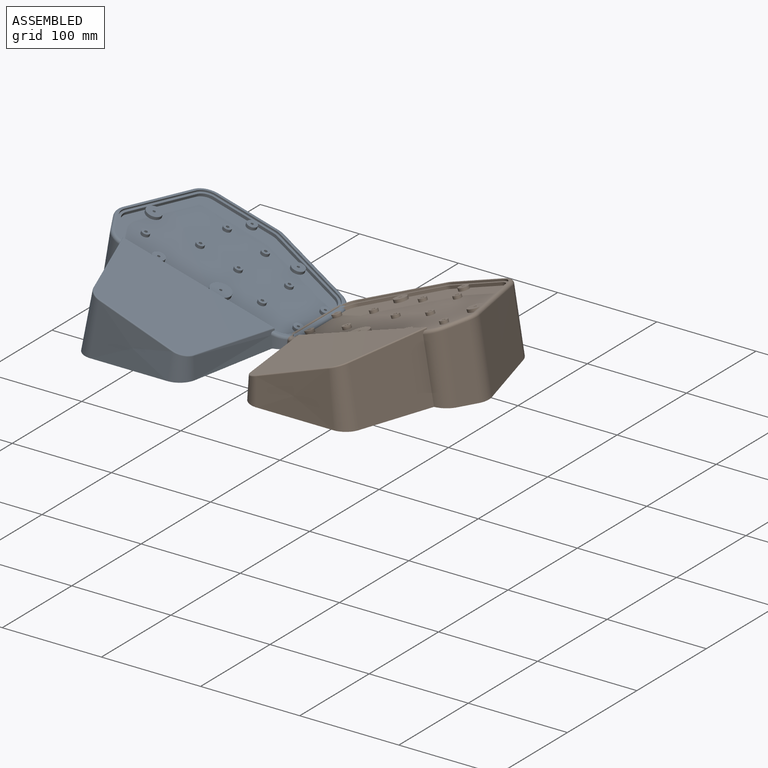
[diagram: assembled view]
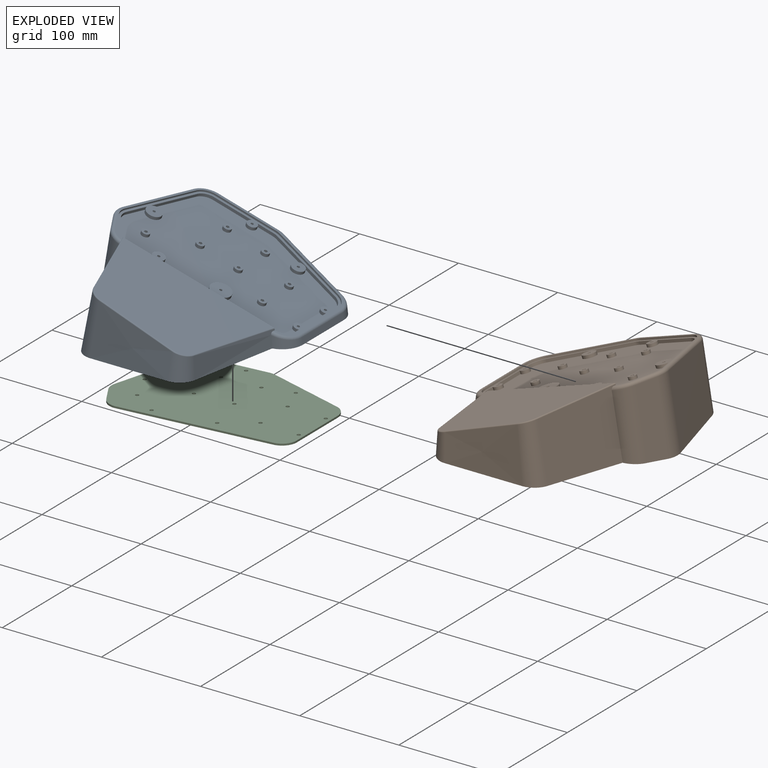
[diagram: exploded view]
GUIDED TOUR — FREECAD ASSEMBLY "3d_printed_tented_case"

This assembly has 3 components, labeled P0..P2 below (a component is one placed body or linked part; the same part can appear more than once), held together by 0 modeled joints plus 3 derived contact edges. A joint is a constraint between two components; its type names the relative motion it leaves free:
  CONTACT — a derived adjacency edge — the two components touch in the source model (clearance under 2% of the assembly's diagonal); it is measured from the geometry, not a modeled constraint.
Axis/direction vectors are unit vectors and 'through' points are millimeter coordinates, both in the assembly's world frame.

MATES
  1. CONTACT "contact_0_1": P0 <-> P1, contact direction (1.000, 0.000, 0.000) through (0.00, -88.42, 9.13) mm (derived from contact, not a modeled constraint)
  2. CONTACT "contact_0_2": P0 <-> P2, contact direction (0.000, 0.000, -1.000) through (-6.50, -65.21, 2.38) mm (derived from contact, not a modeled constraint)
  3. CONTACT "contact_1_2": P1 <-> P2, contact direction (-0.987, 0.120, -0.103) through (-3.71, -7.63, 0.00) mm (derived from contact, not a modeled constraint)

ASSEMBLY ORDER
  1. P0 — the base component [order heuristic]
  2. P1 — core [order heuristic]
  3. P2 [order verified]
Order-tag legend:
  [order verified] — this step's position reverses a verified removal order: the component was checked to insert without passing through the ones already placed.
  [order heuristic] — the first 2 components form the assembly's core: parts whose collision-free extraction could not be verified, listed in mate-graph order.

Of the 3 components, 2 carry a construction recipe — the FreeCAD feature program (sketches with constraints, then the solid features that consume them) that regenerates the part from scratch, quoted from this document or from the linked companion document it references; the rest are supplied as boundary geometry only. The tour below walks the components in assembly order: each is shown spotlighted twice — in the assembled view, then in the exploded view, where a leader line traces a displaced component back to its assembled socket (components that stay in place when exploded have no leader line; saturated green if recipe-attached, orange if geometry-only; every other component desaturated gray) — followed by its recipe or geometry summary and the mates that hold it.
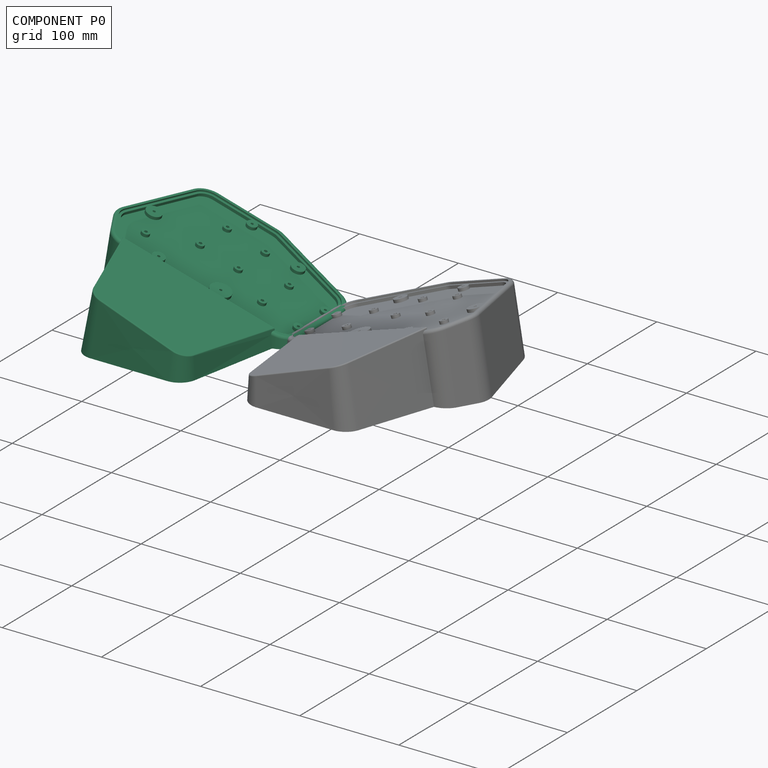
[diagram: component P0 — assembled]
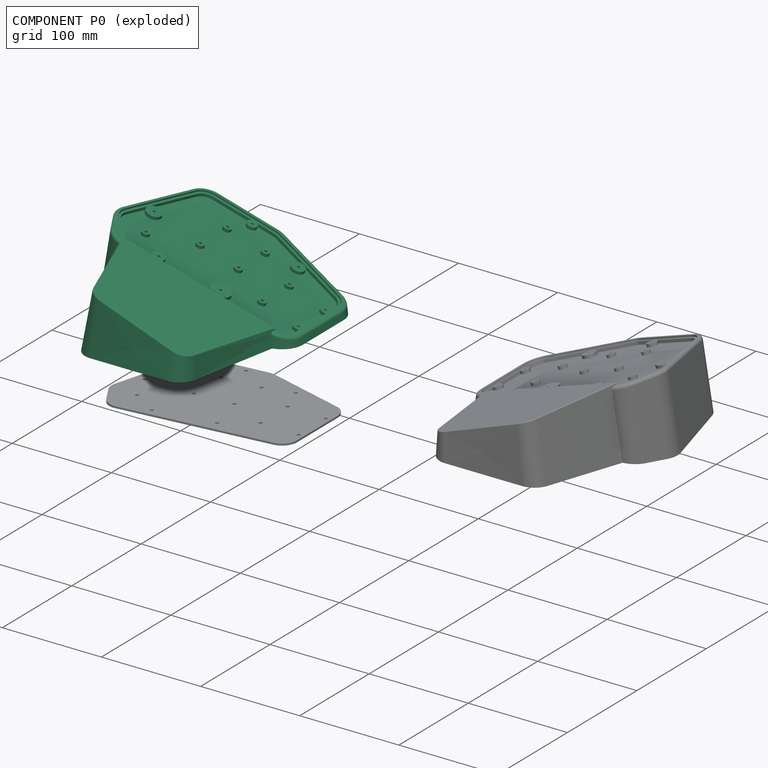
[diagram: component P0 — exploded]
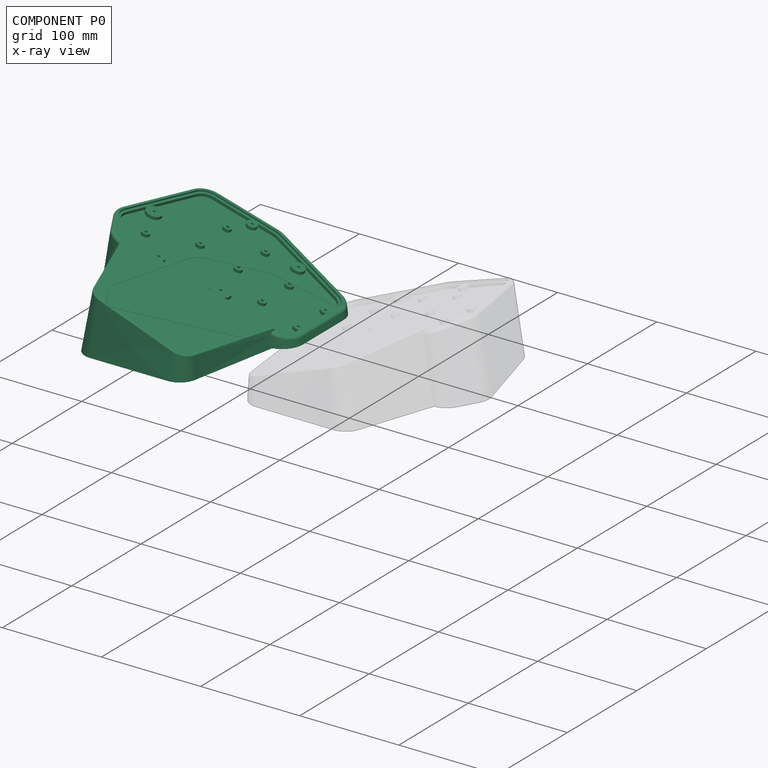
[diagram: component P0 — x-ray view]
COMPONENT P0 — recipe-attached ("Right Hand Side", modeled in this document).
Held by: resting contact with P1 (derived edge); resting contact with P2 (derived edge).
Construction recipe (the document's own serialized feature program — sketch geometry with constraints, then the solid features built on it; lengths are millimeters unless a unit is written):

FEATURE [Sketcher::SketchObject] Sketch002  label="Case Bottom Face"
  FullyConstrained = true
  MapMode = 5
  Support = -> [XY_Plane]
  expr: Constraints[5] = Sketch.Constraints[5]
  expr: Constraints[10] = Sketch.Constraints[10]
  expr: Constraints[6] = Sketch.Constraints[6]
  expr: Constraints[7] = Sketch.Constraints[7]
  expr: Constraints[13] = Sketch.Constraints[13]
  expr: Constraints[42] = <<PCB Outline S>>.Constraints.vertex_radius + <<Parameters>>.pcb_lower_padding
  expr: Constraints[8] = Sketch.Constraints[8]
  expr: Constraints[16] = Sketch.Constraints[16]
  expr: Constraints[9] = Sketch.Constraints[9]
  expr: Constraints[14] = Sketch.Constraints[14]
  expr: Constraints[11] = Sketch.Constraints[11]
  expr: Constraints[12] = Sketch.Constraints[12]
  expr: Constraints[15] = Sketch.Constraints[15]
  sketch-geometry (18):
    g0: LineSegment StartX=-152 StartY=-1 StartZ=0 EndX=-172.287 EndY=-75.1 EndZ=0
    g1: LineSegment StartX=-172.287 StartY=-75.1 StartZ=0 EndX=-162.537 EndY=-91.9875 EndZ=0
    g2: LineSegment StartX=-162.537 StartY=-91.9875 StartZ=0 EndX=-15 EndY=-75.5 EndZ=0
    g3: LineSegment StartX=-15 StartY=-75.5 StartZ=0 EndX=-15 EndY=-17 EndZ=0
    g4: LineSegment StartX=-15 StartY=-17 StartZ=0 EndX=-93 EndY=5 EndZ=0
    g5: LineSegment StartX=-93 StartY=5 StartZ=0 EndX=-152 EndY=-1 EndZ=0
    g6: LineSegment StartX=-172.255 StartY=4.54541 StartZ=0 EndX=-192.542 EndY=-69.5546 EndZ=0
    g7: LineSegment StartX=-154.125 StartY=19.8922 StartZ=0 EndX=-95.1246 EndY=25.8922 EndZ=0
    g8: LineSegment StartX=-87.2993 StartY=25.2114 StartZ=0 EndX=-9.29934 EndY=3.21144 EndZ=0
    g9: LineSegment StartX=6 StartY=-17 StartZ=0 EndX=6 EndY=-75.5 EndZ=0
    g10: LineSegment StartX=-12.6677 StartY=-96.3701 StartZ=0 EndX=-160.205 EndY=-112.858 EndZ=0
    g11: LineSegment StartX=-190.474 StartY=-85.6 StartZ=0 EndX=-180.724 EndY=-102.487 EndZ=0
    g12: ArcOfCircle CenterX=-152 CenterY=-1 CenterZ=0 NormalX=0 NormalY=0 NormalZ=1 AngleXU=0 Radius=21 StartAngle=1.67214 EndAngle=2.87436
    g13: ArcOfCircle CenterX=-93 CenterY=5 CenterZ=0 NormalX=0 NormalY=0 NormalZ=1 AngleXU=0 Radius=21 StartAngle=1.29589 EndAngle=1.67214
    g14: ArcOfCircle CenterX=-15 CenterY=-17 CenterZ=0 NormalX=0 NormalY=0 NormalZ=1 AngleXU=0 Radius=21 StartAngle=0 EndAngle=1.29589
    g15: ArcOfCircle CenterX=-15 CenterY=-75.5 CenterZ=0 NormalX=0 NormalY=0 NormalZ=1 AngleXU=0 Radius=21 StartAngle=4.82368 EndAngle=6.28318
    g16: ArcOfCircle CenterX=-162.537 CenterY=-91.9875 CenterZ=0 NormalX=0 NormalY=0 NormalZ=1 AngleXU=0 Radius=21 StartAngle=3.66519 EndAngle=4.82368
    g17: ArcOfCircle CenterX=-172.287 CenterY=-75.1 CenterZ=0 NormalX=0 NormalY=0 NormalZ=1 AngleXU=0 Radius=21 StartAngle=2.87436 EndAngle=3.66519
  constraints (43):
    c: Coincident(g0,g1)
    c: Coincident(g1,g2)
    c: Coincident(g2,g3)
    c: Coincident(g3,g4)
    c: Coincident(g4,g5)
    c: DistanceX(g0) = -172.287
    c: DistanceY(g0) = -75.1
    c: DistanceX(g1) = -162.537
    c: DistanceY(g1) = -91.9875
    c: DistanceX(g2) = -15
    c: DistanceY(g2) = -75.5
    c: DistanceX(g3) = -15
    c: DistanceY(g3) = -17
    c: DistanceX(g4) = -93
    c: DistanceY(g4) = 5
    c: DistanceX(g0) = -152
    c: DistanceY(g0) = -1
    c: Vertical(g9)
    c: Coincident(g12,g0)
    c: Coincident(g13,g4)
    c: Coincident(g14,g3)
    c: Coincident(g15,g2)
    c: Coincident(g16,g1)
    c: Coincident(g17,g0)
    c: Equal(g12,g13)
    c: Equal(g13,g14)
    c: Equal(g14,g15)
    c: Equal(g15,g16)
    c: Equal(g16,g17)
    c: Tangent(g12,g7) = 1.5708
    c: Tangent(g12,g6) = -1.5708
    c: Tangent(g6,g17) = -1.5708
    c: Tangent(g17,g11) = -1.5708
    c: Coincident(g15,g9)
    c: Tangent(g15,g10) = 1.5708
    c: Tangent(g16,g10) = 1.5708
    c: Tangent(g13,g8) = 1.5708
    c: Tangent(g13,g7) = 1.5708
    c: Tangent(g8,g14) = 1.5708
    c: Tangent(g9,g14) = 1.5708
    c: Tangent(g16,g11) = -1.5708
    c: Coincident(g12,g5)
    c: Radius(g12) = 21
FEATURE [PartDesign::Plane] DatumPlane  label="Top Face Plane"
  AttachmentOffset = pos=(0,0,10) rot=(0,1,0;0.349066rad)
  Length = 285.46
  MapMode = 5
  Placement = pos=(0,0,10) rot=(0,1,0;0.349066rad)
  ResizeMode = 0
  Support = -> [XY_Plane]
  Width = 270.285
  expr: .AttachmentOffset.Base.z = <<Parameters>>.pcb_z_offset
  expr: .AttachmentOffset.Rotation.Angle = <<Parameters>>.tent_angle
FEATURE [Sketcher::SketchObject] Sketch003  label="Case Top Face"
  FullyConstrained = true
  MapMode = 5
  Placement = pos=(4e-16,0,10) rot=(0,1,0;0.349066rad)
  Support = -> [DatumPlane]
  expr: Constraints[5] = Sketch.Constraints[5]
  expr: Constraints[10] = Sketch.Constraints[10]
  expr: Constraints[6] = Sketch.Constraints[6]
  expr: Constraints[7] = Sketch.Constraints[7]
  expr: Constraints[13] = Sketch.Constraints[13]
  expr: Constraints[42] = <<PCB Outline S>>.Constraints.vertex_radius + <<Parameters>>.pcb_upper_padding
  expr: Constraints[8] = Sketch.Constraints[8]
  expr: Constraints[16] = Sketch.Constraints[16]
  expr: Constraints[9] = Sketch.Constraints[9]
  expr: Constraints[14] = Sketch.Constraints[14]
  expr: Constraints[11] = Sketch.Constraints[11]
  expr: Constraints[12] = Sketch.Constraints[12]
  expr: Constraints[15] = Sketch.Constraints[15]
  sketch-geometry (18):
    g0: LineSegment StartX=-152 StartY=-1 StartZ=0 EndX=-172.287 EndY=-75.1 EndZ=0
    g1: LineSegment StartX=-172.287 StartY=-75.1 StartZ=0 EndX=-162.537 EndY=-91.9875 EndZ=0
    g2: LineSegment StartX=-162.537 StartY=-91.9875 StartZ=0 EndX=-15 EndY=-75.5 EndZ=0
    g3: LineSegment StartX=-15 StartY=-75.5 StartZ=0 EndX=-15 EndY=-17 EndZ=0
    g4: LineSegment StartX=-15 StartY=-17 StartZ=0 EndX=-93 EndY=5 EndZ=0
    g5: LineSegment StartX=-93 StartY=5 StartZ=0 EndX=-152 EndY=-1 EndZ=0
    g6: LineSegment StartX=-171.29 StartY=4.28134 StartZ=0 EndX=-191.578 EndY=-69.8187 EndZ=0
    g7: LineSegment StartX=-154.023 StartY=18.8974 StartZ=0 EndX=-95.0235 EndY=24.8974 EndZ=0
    g8: LineSegment StartX=-87.5708 StartY=24.249 StartZ=0 EndX=-9.5708 EndY=2.24899 EndZ=0
    g9: LineSegment StartX=5 StartY=-17 StartZ=0 EndX=5 EndY=-75.5 EndZ=0
    g10: LineSegment StartX=-12.7788 StartY=-95.3763 StartZ=0 EndX=-160.316 EndY=-111.864 EndZ=0
    g11: LineSegment StartX=-189.608 StartY=-85.1 StartZ=0 EndX=-179.858 EndY=-101.987 EndZ=0
    g12: ArcOfCircle CenterX=-152 CenterY=-1 CenterZ=0 NormalX=0 NormalY=0 NormalZ=1 AngleXU=0 Radius=20 StartAngle=1.67214 EndAngle=2.87436
    g13: ArcOfCircle CenterX=-93 CenterY=5 CenterZ=0 NormalX=0 NormalY=0 NormalZ=1 AngleXU=0 Radius=20 StartAngle=1.29589 EndAngle=1.67214
    g14: ArcOfCircle CenterX=-15 CenterY=-17 CenterZ=0 NormalX=0 NormalY=0 NormalZ=1 AngleXU=0 Radius=20 StartAngle=0 EndAngle=1.29589
    g15: ArcOfCircle CenterX=-15 CenterY=-75.5 CenterZ=0 NormalX=0 NormalY=0 NormalZ=1 AngleXU=0 Radius=20 StartAngle=4.82368 EndAngle=6.28319
    g16: ArcOfCircle CenterX=-162.537 CenterY=-91.9875 CenterZ=0 NormalX=0 NormalY=0 NormalZ=1 AngleXU=0 Radius=20 StartAngle=3.66519 EndAngle=4.82368
    g17: ArcOfCircle CenterX=-172.287 CenterY=-75.1 CenterZ=0 NormalX=0 NormalY=0 NormalZ=1 AngleXU=0 Radius=20 StartAngle=2.87436 EndAngle=3.66519
  constraints (43):
    c: Coincident(g0,g1)
    c: Coincident(g1,g2)
    c: Coincident(g2,g3)
    c: Coincident(g3,g4)
    c: Coincident(g4,g5)
    c: DistanceX(g0) = -172.287
    c: DistanceY(g0) = -75.1
    c: DistanceX(g1) = -162.537
    c: DistanceY(g1) = -91.9875
    c: DistanceX(g2) = -15
    c: DistanceY(g2) = -75.5
    c: DistanceX(g3) = -15
    c: DistanceY(g3) = -17
    c: DistanceX(g4) = -93
    c: DistanceY(g4) = 5
    c: DistanceX(g0) = -152
    c: DistanceY(g0) = -1
    c: Vertical(g9)
    c: Coincident(g12,g0)
    c: Coincident(g13,g4)
    c: Coincident(g14,g3)
    c: Coincident(g15,g2)
    c: Coincident(g16,g1)
    c: Coincident(g17,g0)
    c: Equal(g12,g13)
    c: Equal(g13,g14)
    c: Equal(g14,g15)
    c: Equal(g15,g16)
    c: Equal(g16,g17)
    c: Tangent(g12,g7) = 1.5708
    c: Tangent(g12,g6) = -1.5708
    c: Tangent(g6,g17) = -1.5708
    c: Tangent(g17,g11) = -1.5708
    c: Coincident(g15,g9)
    c: Tangent(g15,g10) = 1.5708
    c: Tangent(g16,g10) = 1.5708
    c: Tangent(g13,g8) = 1.5708
    c: Tangent(g13,g7) = 1.5708
    c: Tangent(g8,g14) = 1.5708
    c: Tangent(g9,g14) = 1.5708
    c: Tangent(g16,g11) = -1.5708
    c: Coincident(g12,g5)
    c: Radius(g12) = 20
FEATURE [PartDesign::AdditiveLoft] AdditiveLoft  label="Case Body"
  Closed = false
  Profile = -> Sketch002
  Ruled = false
  Sections = -> [Sketch003]
FEATURE [Sketcher::SketchObject] Sketch004
  FullyConstrained = true
  MapMode = 5
  Placement = pos=(4e-16,0,10) rot=(0,1,0;0.349066rad)
  Support = -> [DatumPlane]
  expr: Constraints[5] = Sketch.Constraints[5]
  expr: Constraints[10] = Sketch.Constraints[10]
  expr: Constraints[6] = Sketch.Constraints[6]
  expr: Constraints[7] = Sketch.Constraints[7]
  expr: Constraints[13] = Sketch.Constraints[13]
  expr: Constraints[8] = Sketch.Constraints[8]
  expr: Constraints[16] = Sketch.Constraints[16]
  expr: Constraints[9] = Sketch.Constraints[9]
  expr: Constraints[14] = Sketch.Constraints[14]
  expr: Constraints[11] = Sketch.Constraints[11]
  expr: Constraints[12] = Sketch.Constraints[12]
  expr: Constraints[15] = Sketch.Constraints[15]
  sketch-geometry (18):
    g0: LineSegment StartX=-152 StartY=-1 StartZ=0 EndX=-172.287 EndY=-75.1 EndZ=0
    g1: LineSegment StartX=-172.287 StartY=-75.1 StartZ=0 EndX=-162.537 EndY=-91.9875 EndZ=0
    g2: LineSegment StartX=-162.537 StartY=-91.9875 StartZ=0 EndX=-15 EndY=-75.5 EndZ=0
    g3: LineSegment StartX=-15 StartY=-75.5 StartZ=0 EndX=-15 EndY=-17 EndZ=0
    g4: LineSegment StartX=-15 StartY=-17 StartZ=0 EndX=-93 EndY=5 EndZ=0
    g5: LineSegment StartX=-93 StartY=5 StartZ=0 EndX=-152 EndY=-1 EndZ=0
    g6: LineSegment StartX=-166.95 StartY=3.09304 StartZ=0 EndX=-187.237 EndY=-71.007 EndZ=0
    g7: LineSegment StartX=-153.568 StartY=14.4205 StartZ=0 EndX=-94.5682 EndY=20.4205 EndZ=0
    g8: LineSegment StartX=-88.7924 StartY=19.918 StartZ=0 EndX=-10.7924 EndY=-2.08203 EndZ=0
    g9: LineSegment StartX=0.5 StartY=-17 StartZ=0 EndX=0.5 EndY=-75.5 EndZ=0
    g10: LineSegment StartX=-13.2786 StartY=-90.9041 StartZ=0 EndX=-160.816 EndY=-107.392 EndZ=0
    g11: LineSegment StartX=-185.711 StartY=-82.85 StartZ=0 EndX=-175.961 EndY=-99.7375 EndZ=0
    g12: ArcOfCircle CenterX=-152 CenterY=-1 CenterZ=0 NormalX=0 NormalY=0 NormalZ=1 AngleXU=0 Radius=15.5 StartAngle=1.67214 EndAngle=2.87436
    g13: ArcOfCircle CenterX=-93 CenterY=5 CenterZ=0 NormalX=0 NormalY=0 NormalZ=1 AngleXU=0 Radius=15.5 StartAngle=1.29589 EndAngle=1.67214
    g14: ArcOfCircle CenterX=-15 CenterY=-17 CenterZ=0 NormalX=0 NormalY=0 NormalZ=1 AngleXU=0 Radius=15.5 StartAngle=0 EndAngle=1.29589
    g15: ArcOfCircle CenterX=-15 CenterY=-75.5 CenterZ=0 NormalX=0 NormalY=0 NormalZ=1 AngleXU=0 Radius=15.5 StartAngle=4.82368 EndAngle=6.28319
    g16: ArcOfCircle CenterX=-162.537 CenterY=-91.9875 CenterZ=0 NormalX=0 NormalY=0 NormalZ=1 AngleXU=0 Radius=15.5 StartAngle=3.66519 EndAngle=4.82368
    g17: ArcOfCircle CenterX=-172.287 CenterY=-75.1 CenterZ=0 NormalX=0 NormalY=0 NormalZ=1 AngleXU=0 Radius=15.5 StartAngle=2.87436 EndAngle=3.66519
  constraints (43):
    c: Coincident(g0,g1)
    c: Coincident(g1,g2)
    c: Coincident(g2,g3)
    c: Coincident(g3,g4)
    c: Coincident(g4,g5)
    c: DistanceX(g0) = -172.287
    c: DistanceY(g0) = -75.1
    c: DistanceX(g1) = -162.537
    c: DistanceY(g1) = -91.9875
    c: DistanceX(g2) = -15
    c: DistanceY(g2) = -75.5
    c: DistanceX(g3) = -15
    c: DistanceY(g3) = -17
    c: DistanceX(g4) = -93
    c: DistanceY(g4) = 5
    c: DistanceX(g0) = -152
    c: DistanceY(g0) = -1
    c: Vertical(g9)
    c: Coincident(g12,g0)
    c: Coincident(g13,g4)
    c: Coincident(g14,g3)
    c: Coincident(g15,g2)
    c: Coincident(g16,g1)
    c: Coincident(g17,g0)
    c: Equal(g12,g13)
    c: Equal(g13,g14)
    c: Equal(g14,g15)
    c: Equal(g15,g16)
    c: Equal(g16,g17)
    c: Tangent(g12,g7) = 1.5708
    c: Tangent(g12,g6) = -1.5708
    c: Tangent(g6,g17) = -1.5708
    c: Tangent(g17,g11) = -1.5708
    c: Coincident(g15,g9)
    c: Tangent(g15,g10) = 1.5708
    c: Tangent(g16,g10) = 1.5708
    c: Tangent(g13,g8) = 1.5708
    c: Tangent(g13,g7) = 1.5708
    c: Tangent(g8,g14) = 1.5708
    c: Tangent(g9,g14) = 1.5708
    c: Tangent(g16,g11) = -1.5708
    c: Coincident(g12,g5)
    c: Radius(g12) = 15.5
FEATURE [PartDesign::Plane] DatumPlane001  label="PCB Bottom Face"
  AttachmentOffset = pos=(0,0,-1.8) rot=(0,0,1;0rad)
  Length = 285.46
  MapMode = 5
  Placement = pos=(-0.615636,0,8.30855) rot=(0,1,0;0.349066rad)
  ResizeMode = 0
  Support = -> [DatumPlane]
  Width = 270.285
  expr: .AttachmentOffset.Base.z = -<<Parameters>>.pcb_thickness
FEATURE [Sketcher::SketchObject] Sketch005
  FullyConstrained = true
  MapMode = 5
  Placement = pos=(-0.615636,0,8.30855) rot=(0,1,0;0.349066rad)
  Support = -> [DatumPlane001]
  expr: Constraints[36] = Sketch001.Constraints[36]
  expr: Constraints[34] = Sketch001.Constraints[34]
  expr: Constraints[0] = Sketch001.Constraints[0]
  expr: .Constraints.hole_diameter = Sketch001.Constraints[25]
  expr: Constraints[1] = Sketch001.Constraints[1]
  expr: Constraints[2] = Sketch001.Constraints[2]
  expr: Constraints[5] = Sketch001.Constraints[5]
  expr: Constraints[38] = Sketch001.Constraints[38]
  expr: Constraints[29] = Sketch001.Constraints[29]
  expr: Constraints[4] = Sketch001.Constraints[4]
  expr: Constraints[32] = Sketch001.Constraints[32]
  expr: Constraints[3] = Sketch001.Constraints[3]
  expr: Constraints[26] = Sketch001.Constraints[26]
  expr: Constraints[23] = Sketch001.Constraints[23]
  expr: Constraints[19] = Sketch001.Constraints[19]
  expr: Constraints[31] = Sketch001.Constraints[31]
  expr: Constraints[30] = Sketch001.Constraints[30]
  expr: Constraints[21] = Sketch001.Constraints[21]
  expr: Constraints[28] = Sketch001.Constraints[28]
  expr: Constraints[41] = Sketch001.Constraints[41]
  expr: Constraints[22] = Sketch001.Constraints[22]
  expr: Constraints[27] = Sketch001.Constraints[27]
  expr: Constraints[24] = Sketch001.Constraints[24]
  expr: Constraints[20] = Sketch001.Constraints[20]
  expr: Constraints[33] = Sketch001.Constraints[33]
  expr: Constraints[35] = Sketch001.Constraints[35]
  expr: Constraints[37] = Sketch001.Constraints[37]
  expr: Constraints[39] = Sketch001.Constraints[39]
  expr: Constraints[40] = Sketch001.Constraints[40]
  sketch-geometry (98):
    g0: Circle CenterX=-5 CenterY=-26.75 CenterZ=0 NormalX=0 NormalY=0 NormalZ=1 AngleXU=0 Radius=1.75
    g1: Circle CenterX=-5 CenterY=-65.75 CenterZ=0 NormalX=0 NormalY=0 NormalZ=1 AngleXU=0 Radius=1.75
    g2: Circle CenterX=-44.25 CenterY=-25.75 CenterZ=0 NormalX=0 NormalY=0 NormalZ=1 AngleXU=0 Radius=1.75
    g3: Circle CenterX=-44.25 CenterY=-64.75 CenterZ=0 NormalX=0 NormalY=0 NormalZ=1 AngleXU=0 Radius=1.75
    g4: Circle CenterX=-54 CenterY=0 CenterZ=0 NormalX=0 NormalY=0 NormalZ=1 AngleXU=0 Radius=1.75
    g5: Circle CenterX=-83.25 CenterY=-7.75 CenterZ=0 NormalX=0 NormalY=0 NormalZ=1 AngleXU=0 Radius=1.75
    g6: Circle CenterX=-158.969 CenterY=-78.6687 CenterZ=0 NormalX=0 NormalY=0 NormalZ=1 AngleXU=0 Radius=1.75
    g7: Circle CenterX=-73.5 CenterY=-85.5 CenterZ=0 NormalX=0 NormalY=0 NormalZ=1 AngleXU=0 Radius=1.75
    g8: Circle CenterX=-132.25 CenterY=-96 CenterZ=0 NormalX=0 NormalY=0 NormalZ=1 AngleXU=0 Radius=1.75
    g9: Circle CenterX=-171.5 CenterY=-50 CenterZ=0 NormalX=0 NormalY=0 NormalZ=1 AngleXU=0 Radius=1.75
    g10: Circle CenterX=-112.5 CenterY=12 CenterZ=0 NormalX=0 NormalY=0 NormalZ=1 AngleXU=0 Radius=1.75
    g11: Circle CenterX=-122.25 CenterY=-49.25 CenterZ=0 NormalX=0 NormalY=0 NormalZ=1 AngleXU=0 Radius=1.75
    g12: Circle CenterX=-122.25 CenterY=-10.25 CenterZ=0 NormalX=0 NormalY=0 NormalZ=1 AngleXU=0 Radius=1.75
    g13: Circle CenterX=-83.25 CenterY=-46.75 CenterZ=0 NormalX=0 NormalY=0 NormalZ=1 AngleXU=0 Radius=1.75
    g14: LineSegment StartX=-170.618 StartY=-51.2135 StartZ=0 EndX=-170.073 EndY=-49.5365 EndZ=0
    g15: LineSegment StartX=-170.073 StartY=-49.5365 StartZ=0 EndX=-171.5 EndY=-48.5 EndZ=0
    g16: LineSegment StartX=-171.5 StartY=-48.5 StartZ=0 EndX=-172.927 EndY=-49.5365 EndZ=0
    g17: LineSegment StartX=-172.927 StartY=-49.5365 StartZ=0 EndX=-172.382 EndY=-51.2135 EndZ=0
    g18: LineSegment StartX=-172.382 StartY=-51.2135 StartZ=0 EndX=-170.618 EndY=-51.2135 EndZ=0
    g19: Circle CenterX=-171.5 CenterY=-50 CenterZ=0 NormalX=0 NormalY=0 NormalZ=1 AngleXU=0 Radius=1.5
    g20: LineSegment StartX=-133.132 StartY=-97.2135 StartZ=0 EndX=-131.368 EndY=-97.2135 EndZ=0
    g21: LineSegment StartX=-131.368 StartY=-97.2135 StartZ=0 EndX=-130.823 EndY=-95.5365 EndZ=0
    g22: LineSegment StartX=-130.823 StartY=-95.5365 StartZ=0 EndX=-132.25 EndY=-94.5 EndZ=0
    g23: LineSegment StartX=-132.25 StartY=-94.5 StartZ=0 EndX=-133.677 EndY=-95.5365 EndZ=0
    g24: LineSegment StartX=-133.677 StartY=-95.5365 StartZ=0 EndX=-133.132 EndY=-97.2135 EndZ=0
    g25: Circle CenterX=-132.25 CenterY=-96 CenterZ=0 NormalX=0 NormalY=0 NormalZ=1 AngleXU=0 Radius=1.5
    g26: LineSegment StartX=-72.0734 StartY=-85.0365 StartZ=0 EndX=-73.5 EndY=-84 EndZ=0
    g27: LineSegment StartX=-73.5 StartY=-84 StartZ=0 EndX=-74.9266 EndY=-85.0365 EndZ=0
    g28: LineSegment StartX=-74.9266 StartY=-85.0365 StartZ=0 EndX=-74.3817 EndY=-86.7135 EndZ=0
    g29: LineSegment StartX=-74.3817 StartY=-86.7135 StartZ=0 EndX=-72.6183 EndY=-86.7135 EndZ=0
    g30: LineSegment StartX=-72.6183 StartY=-86.7135 StartZ=0 EndX=-72.0734 EndY=-85.0365 EndZ=0
    g31: Circle CenterX=-73.5 CenterY=-85.5 CenterZ=0 NormalX=0 NormalY=0 NormalZ=1 AngleXU=0 Radius=1.5
    g32: LineSegment StartX=-3.57342 StartY=-26.2865 StartZ=0 EndX=-5 EndY=-25.25 EndZ=0
    g33: LineSegment StartX=-5 StartY=-25.25 StartZ=0 EndX=-6.42658 EndY=-26.2865 EndZ=0
    g34: LineSegment StartX=-6.42658 StartY=-26.2865 StartZ=0 EndX=-5.88168 EndY=-27.9635 EndZ=0
    g35: LineSegment StartX=-5.88168 StartY=-27.9635 StartZ=0 EndX=-4.11832 EndY=-27.9635 EndZ=0
    g36: LineSegment StartX=-4.11832 StartY=-27.9635 StartZ=0 EndX=-3.57342 EndY=-26.2865 EndZ=0
    g37: Circle CenterX=-5 CenterY=-26.75 CenterZ=0 NormalX=0 NormalY=0 NormalZ=1 AngleXU=0 Radius=1.5
    g38: LineSegment StartX=-52.5734 StartY=0.463525 StartZ=0 EndX=-54 EndY=1.5 EndZ=0
    g39: LineSegment StartX=-54 StartY=1.5 StartZ=0 EndX=-55.4266 EndY=0.463525 EndZ=0
    g40: LineSegment StartX=-55.4266 StartY=0.463525 StartZ=0 EndX=-54.8817 EndY=-1.21353 EndZ=0
    g41: LineSegment StartX=-54.8817 StartY=-1.21353 StartZ=0 EndX=-53.1183 EndY=-1.21353 EndZ=0
    g42: LineSegment StartX=-53.1183 StartY=-1.21353 StartZ=0 EndX=-52.5734 EndY=0.463525 EndZ=0
    g43: Circle CenterX=-54 CenterY=0 CenterZ=0 NormalX=0 NormalY=0 NormalZ=1 AngleXU=0 Radius=1.5
    g44: LineSegment StartX=-111.618 StartY=10.7865 StartZ=0 EndX=-111.073 EndY=12.4635 EndZ=0
    g45: LineSegment StartX=-111.073 StartY=12.4635 StartZ=0 EndX=-112.5 EndY=13.5 EndZ=0
    g46: LineSegment StartX=-112.5 StartY=13.5 StartZ=0 EndX=-113.927 EndY=12.4635 EndZ=0
    g47: LineSegment StartX=-113.927 StartY=12.4635 StartZ=0 EndX=-113.382 EndY=10.7865 EndZ=0
    g48: LineSegment StartX=-113.382 StartY=10.7865 StartZ=0 EndX=-111.618 EndY=10.7865 EndZ=0
    g49: Circle CenterX=-112.5 CenterY=12 CenterZ=0 NormalX=0 NormalY=0 NormalZ=1 AngleXU=0 Radius=1.5
    g50: LineSegment StartX=-4.11832 StartY=-66.9635 StartZ=0 EndX=-3.57342 EndY=-65.2865 EndZ=0
    g51: LineSegment StartX=-3.57342 StartY=-65.2865 StartZ=0 EndX=-5 EndY=-64.25 EndZ=0
    g52: LineSegment StartX=-5 StartY=-64.25 StartZ=0 EndX=-6.42658 EndY=-65.2865 EndZ=0
    g53: LineSegment StartX=-6.42658 StartY=-65.2865 StartZ=0 EndX=-5.88168 EndY=-66.9635 EndZ=0
    g54: LineSegment StartX=-5.88168 StartY=-66.9635 StartZ=0 EndX=-4.11832 EndY=-66.9635 EndZ=0
    g55: Circle CenterX=-5 CenterY=-65.75 CenterZ=0 NormalX=0 NormalY=0 NormalZ=1 AngleXU=0 Radius=1.5
    g56: LineSegment StartX=-121.221 StartY=-11.6658 StartZ=0 EndX=-120.586 EndY=-9.70922 EndZ=0
    g57: LineSegment StartX=-120.586 StartY=-9.70922 StartZ=0 EndX=-122.25 EndY=-8.5 EndZ=0
    g58: LineSegment StartX=-122.25 StartY=-8.5 StartZ=0 EndX=-123.914 EndY=-9.70922 EndZ=0
    g59: LineSegment StartX=-123.914 StartY=-9.70922 StartZ=0 EndX=-123.279 EndY=-11.6658 EndZ=0
    g60: LineSegment StartX=-123.279 StartY=-11.6658 StartZ=0 EndX=-121.221 EndY=-11.6658 EndZ=0
    g61: Circle CenterX=-122.25 CenterY=-10.25 CenterZ=0 NormalX=0 NormalY=0 NormalZ=1 AngleXU=0 Radius=1.75
    g62: LineSegment StartX=-82.2214 StartY=-9.16578 StartZ=0 EndX=-81.5857 EndY=-7.20922 EndZ=0
    g63: LineSegment StartX=-81.5857 StartY=-7.20922 StartZ=0 EndX=-83.25 EndY=-6 EndZ=0
    g64: LineSegment StartX=-83.25 StartY=-6 StartZ=0 EndX=-84.9143 EndY=-7.20922 EndZ=0
    g65: LineSegment StartX=-84.9143 StartY=-7.20922 StartZ=0 EndX=-84.2786 EndY=-9.16578 EndZ=0
    g66: LineSegment StartX=-84.2786 StartY=-9.16578 StartZ=0 EndX=-82.2214 EndY=-9.16578 EndZ=0
    g67: Circle CenterX=-83.25 CenterY=-7.75 CenterZ=0 NormalX=0 NormalY=0 NormalZ=1 AngleXU=0 Radius=1.75
    g68: LineSegment StartX=-121.221 StartY=-50.6658 StartZ=0 EndX=-120.586 EndY=-48.7092 EndZ=0
    g69: LineSegment StartX=-120.586 StartY=-48.7092 StartZ=0 EndX=-122.25 EndY=-47.5 EndZ=0
    g70: LineSegment StartX=-122.25 StartY=-47.5 StartZ=0 EndX=-123.914 EndY=-48.7092 EndZ=0
    g71: LineSegment StartX=-123.914 StartY=-48.7092 StartZ=0 EndX=-123.279 EndY=-50.6658 EndZ=0
    g72: LineSegment StartX=-123.279 StartY=-50.6658 StartZ=0 EndX=-121.221 EndY=-50.6658 EndZ=0
    g73: Circle CenterX=-122.25 CenterY=-49.25 CenterZ=0 NormalX=0 NormalY=0 NormalZ=1 AngleXU=0 Radius=1.75
    g74: LineSegment StartX=-157.304 StartY=-78.128 StartZ=0 EndX=-158.969 EndY=-76.9187 EndZ=0
    g75: LineSegment StartX=-158.969 StartY=-76.9187 StartZ=0 EndX=-160.633 EndY=-78.128 EndZ=0
    g76: LineSegment StartX=-160.633 StartY=-78.128 StartZ=0 EndX=-159.997 EndY=-80.0845 EndZ=0
    g77: LineSegment StartX=-159.997 StartY=-80.0845 StartZ=0 EndX=-157.94 EndY=-80.0845 EndZ=0
    g78: LineSegment StartX=-157.94 StartY=-80.0845 StartZ=0 EndX=-157.304 EndY=-78.128 EndZ=0
    g79: Circle CenterX=-158.969 CenterY=-78.6687 CenterZ=0 NormalX=0 NormalY=0 NormalZ=1 AngleXU=0 Radius=1.75
    g80: LineSegment StartX=-43.2214 StartY=-27.1658 StartZ=0 EndX=-42.5857 EndY=-25.2092 EndZ=0
    g81: LineSegment StartX=-42.5857 StartY=-25.2092 StartZ=0 EndX=-44.25 EndY=-24 EndZ=0
    g82: LineSegment StartX=-44.25 StartY=-24 StartZ=0 EndX=-45.9143 EndY=-25.2092 EndZ=0
    g83: LineSegment StartX=-45.9143 StartY=-25.2092 StartZ=0 EndX=-45.2786 EndY=-27.1658 EndZ=0
    g84: LineSegment StartX=-45.2786 StartY=-27.1658 StartZ=0 EndX=-43.2214 EndY=-27.1658 EndZ=0
    g85: Circle CenterX=-44.25 CenterY=-25.75 CenterZ=0 NormalX=0 NormalY=0 NormalZ=1 AngleXU=0 Radius=1.75
    g86: LineSegment StartX=-82.2214 StartY=-48.1658 StartZ=0 EndX=-81.5857 EndY=-46.2092 EndZ=0
    g87: LineSegment StartX=-81.5857 StartY=-46.2092 StartZ=0 EndX=-83.25 EndY=-45 EndZ=0
    g88: LineSegment StartX=-83.25 StartY=-45 StartZ=0 EndX=-84.9143 EndY=-46.2092 EndZ=0
    g89: LineSegment StartX=-84.9143 StartY=-46.2092 StartZ=0 EndX=-84.2786 EndY=-48.1658 EndZ=0
    g90: LineSegment StartX=-84.2786 StartY=-48.1658 StartZ=0 EndX=-82.2214 EndY=-48.1658 EndZ=0
    g91: Circle CenterX=-83.25 CenterY=-46.75 CenterZ=0 NormalX=0 NormalY=0 NormalZ=1 AngleXU=0 Radius=1.75
    g92: LineSegment StartX=-43.2214 StartY=-66.1658 StartZ=0 EndX=-42.5857 EndY=-64.2092 EndZ=0
    g93: LineSegment StartX=-42.5857 StartY=-64.2092 StartZ=0 EndX=-44.25 EndY=-63 EndZ=0
    g94: LineSegment StartX=-44.25 StartY=-63 StartZ=0 EndX=-45.9143 EndY=-64.2092 EndZ=0
    g95: LineSegment StartX=-45.9143 StartY=-64.2092 StartZ=0 EndX=-45.2786 EndY=-66.1658 EndZ=0
    g96: LineSegment StartX=-45.2786 StartY=-66.1658 StartZ=0 EndX=-43.2214 EndY=-66.1658 EndZ=0
    g97: Circle CenterX=-44.25 CenterY=-64.75 CenterZ=0 NormalX=0 NormalY=0 NormalZ=1 AngleXU=0 Radius=1.75
  constraints (238):
    c: DistanceX(g0) = -5
    c: DistanceY(g0) = -26.75
    c: DistanceX(g1) = -5
    c: DistanceY(g1) = -65.75
    c: DistanceX(g2) = -44.25
    c: DistanceY(g2) = -25.75
    c: Equal(g0,g1)
    c: Equal(g1,g2)
    c: Equal(g2,g3)
    c: Equal(g3,g4)
    c: Equal(g4,g5)
    c: Equal(g5,g6)
    c: Equal(g6,g7)
    c: Equal(g7,g8)
    c: Equal(g8,g9)
    c: Equal(g9,g10)
    c: Equal(g10,g11)
    c: Equal(g11,g12)
    c: Equal(g12,g13)
    c: DistanceX(g3) = -44.25
    c: DistanceY(g3) = -64.75
    c: DistanceX(g5) = -83.25
    c: DistanceY(g5) = -7.75
    c: DistanceX(g13) = -83.25
    c: DistanceY(g13) = -46.75
    c: Diameter(g1) = 3.5  'hole_diameter'
    c: DistanceX(g12) = -122.25
    c: DistanceY(g12) = -10.25
    c: DistanceX(g11) = -122.25
    c: DistanceY(g11) = -49.25
    c: DistanceX(g4) = -54
    c: DistanceY(g4) = 0
    c: DistanceX(g7) = -73.5
    c: DistanceY(g7) = -85.5
    c: DistanceX(g10) = -112.5
    c: DistanceY(g10) = 12
    c: DistanceX(g8) = -132.25
    c: DistanceY(g8) = -96
    c: DistanceX(g9) = -171.5
    c: DistanceY(g9) = -50
    c: DistanceX(g6) = -158.969
    c: DistanceY(g6) = -78.6687
    c: Coincident(g14,g15)
    c: Coincident(g15,g16)
    c: Coincident(g16,g17)
    c: Coincident(g17,g18)
    c: Coincident(g18,g14)
    c: Equal(g14, g15-g18) x4
    c: PointOnObject(g14,g19)
    c: PointOnObject(g15,g19)
    c: PointOnObject(g16,g19)
    c: PointOnObject(g17,g19)
    c: PointOnObject(g18,g19)
    c: Coincident(g20,g21)
    c: Coincident(g21,g22)
    c: Coincident(g22,g23)
    c: Coincident(g23,g24)
    c: Coincident(g24,g20)
    c: Equal(g20, g21-g24) x4
    c: PointOnObject(g20,g25)
    c: PointOnObject(g21,g25)
    c: PointOnObject(g22,g25)
    c: PointOnObject(g23,g25)
    c: PointOnObject(g24,g25)
    c: Coincident(g26,g27)
    c: Coincident(g27,g28)
    c: Coincident(g28,g29)
    c: Coincident(g29,g30)
    c: Coincident(g30,g26)
    c: Equal(g26, g27-g30) x4
    c: PointOnObject(g26,g31)
    c: PointOnObject(g27,g31)
    c: PointOnObject(g28,g31)
    c: PointOnObject(g29,g31)
    c: PointOnObject(g30,g31)
    c: Coincident(g32,g33)
    c: Coincident(g33,g34)
    c: Coincident(g34,g35)
    c: Coincident(g35,g36)
    c: Coincident(g36,g32)
    c: Equal(g32, g33-g36) x4
    c: PointOnObject(g32,g37)
    c: PointOnObject(g33,g37)
    c: PointOnObject(g34,g37)
    c: PointOnObject(g35,g37)
    c: PointOnObject(g36,g37)
    c: Coincident(g38,g39)
    c: Coincident(g39,g40)
    c: Coincident(g40,g41)
    c: Coincident(g41,g42)
    c: Coincident(g42,g38)
    c: Equal(g38, g39-g42) x4
    c: PointOnObject(g38,g43)
    c: PointOnObject(g39,g43)
    c: PointOnObject(g40,g43)
    c: PointOnObject(g41,g43)
    c: PointOnObject(g42,g43)
    c: Coincident(g44,g45)
    c: Coincident(g45,g46)
    c: Coincident(g46,g47)
    c: Coincident(g47,g48)
    c: Coincident(g48,g44)
    c: Equal(g44, g45-g48) x4
    c: PointOnObject(g44,g49)
    c: PointOnObject(g45,g49)
    c: PointOnObject(g46,g49)
    c: PointOnObject(g47,g49)
    c: PointOnObject(g48,g49)
    c: Coincident(g0,g37)
    c: Coincident(g49,g10)
    c: Coincident(g43,g4)
    c: Coincident(g7,g31)
    c: Coincident(g9,g19)
    c: Coincident(g8,g25)
    c: Coincident(g50,g51)
    c: Coincident(g51,g52)
    c: Coincident(g52,g53)
    c: Coincident(g53,g54)
    c: Coincident(g54,g50)
    c: Equal(g50, g51-g54) x4
    c: PointOnObject(g50,g55)
    c: PointOnObject(g51,g55)
    c: PointOnObject(g52,g55)
    c: PointOnObject(g53,g55)
    c: PointOnObject(g54,g55)
    c: Coincident(g55,g1)
    c: Equal(g19,g25)
    c: Equal(g25,g31)
    c: Equal(g31,g37)
    c: Equal(g37,g43)
    c: Equal(g43,g49)
    c: Equal(g49,g55)
    c: Diameter(g19) = 3
    c: Horizontal(g20)
    c: Horizontal(g29)
    c: Horizontal(g54)
    c: Horizontal(g35)
    c: Horizontal(g41)
    c: Horizontal(g48)
    c: Horizontal(g18)
    c: Coincident(g56,g57)
    c: Coincident(g57,g58)
    c: Coincident(g58,g59)
    c: Coincident(g59,g60)
    c: Coincident(g60,g56)
    c: Equal(g56, g57-g60) x4
    c: PointOnObject(g56,g61)
    c: PointOnObject(g57,g61)
    c: PointOnObject(g58,g61)
    c: PointOnObject(g59,g61)
    c: PointOnObject(g60,g61)
    c: Coincident(g61,g12)
    c: Coincident(g62,g63)
    c: Coincident(g63,g64)
    c: Coincident(g64,g65)
    c: Coincident(g65,g66)
    c: Coincident(g66,g62)
    c: Equal(g62, g63-g66) x4
    c: PointOnObject(g62,g67)
    c: PointOnObject(g63,g67)
    c: PointOnObject(g64,g67)
    c: PointOnObject(g65,g67)
    c: PointOnObject(g66,g67)
    c: Coincident(g67,g5)
    c: Coincident(g68,g69)
    c: Coincident(g69,g70)
    c: Coincident(g70,g71)
    c: Coincident(g71,g72)
    c: Coincident(g72,g68)
    c: Equal(g68, g69-g72) x4
    c: PointOnObject(g68,g73)
    c: PointOnObject(g69,g73)
    c: PointOnObject(g70,g73)
    c: PointOnObject(g71,g73)
    c: PointOnObject(g72,g73)
    c: Coincident(g73,g11)
    c: Coincident(g74,g75)
    c: Coincident(g75,g76)
    c: Coincident(g76,g77)
    c: Coincident(g77,g78)
    c: Coincident(g78,g74)
    c: Equal(g74, g75-g78) x4
    c: PointOnObject(g74,g79)
    c: PointOnObject(g75,g79)
    c: PointOnObject(g76,g79)
    c: PointOnObject(g77,g79)
    c: PointOnObject(g78,g79)
    c: Coincident(g79,g6)
    c: Coincident(g80,g81)
    c: Coincident(g81,g82)
    c: Coincident(g82,g83)
    c: Coincident(g83,g84)
    c: Coincident(g84,g80)
    c: Equal(g80, g81-g84) x4
    c: PointOnObject(g80,g85)
    c: PointOnObject(g81,g85)
    c: PointOnObject(g82,g85)
    c: PointOnObject(g83,g85)
    c: PointOnObject(g84,g85)
    c: Coincident(g85,g2)
    c: Coincident(g86,g87)
    c: Coincident(g87,g88)
    c: Coincident(g88,g89)
    c: Coincident(g89,g90)
    c: Coincident(g90,g86)
    c: Equal(g86, g87-g90) x4
    c: PointOnObject(g86,g91)
    c: PointOnObject(g87,g91)
    c: PointOnObject(g88,g91)
    c: PointOnObject(g89,g91)
    c: PointOnObject(g90,g91)
    c: Coincident(g91,g13)
    c: Coincident(g92,g93)
    c: Coincident(g93,g94)
    c: Coincident(g94,g95)
    c: Coincident(g95,g96)
    c: Coincident(g96,g92)
    c: Equal(g92, g93-g96) x4
    c: PointOnObject(g92,g97)
    c: PointOnObject(g93,g97)
    c: PointOnObject(g94,g97)
    c: PointOnObject(g95,g97)
    c: PointOnObject(g96,g97)
    c: Coincident(g97,g3)
    c: Horizontal(g90)
    c: Horizontal(g60)
    c: Horizontal(g72)
    c: Horizontal(g77)
    c: Horizontal(g96)
    c: Horizontal(g84)
    c: Horizontal(g66)
    c: Equal(g79,g73)
    c: Equal(g73,g61)
    c: Equal(g61,g91)
    c: Equal(g91,g97)
    c: Equal(g97,g85)
    c: Equal(g85,g67)
    c: Equal(g67,g9)
FEATURE [Sketcher::SketchObject] Sketch006
  FullyConstrained = true
  MapMode = 5
  Placement = pos=(-0.615636,0,8.30855) rot=(0,1,0;0.349066rad)
  Support = -> [DatumPlane001]
  expr: Constraints[5] = Sketch.Constraints[5]
  expr: Constraints[10] = Sketch.Constraints[10]
  expr: Constraints[6] = Sketch.Constraints[6]
  expr: Constraints[13] = Sketch.Constraints[13]
  expr: Constraints[7] = Sketch.Constraints[7]
  expr: Constraints[16] = Sketch.Constraints[16]
  expr: Constraints[8] = Sketch.Constraints[8]
  expr: Constraints[9] = Sketch.Constraints[9]
  expr: Constraints[14] = Sketch.Constraints[14]
  expr: Constraints[12] = Sketch.Constraints[12]
  expr: Constraints[15] = Sketch.Constraints[15]
  expr: Constraints[11] = Sketch.Constraints[11]
  sketch-geometry (18):
    g0: LineSegment StartX=-152 StartY=-1 StartZ=0 EndX=-172.287 EndY=-75.1 EndZ=0
    g1: LineSegment StartX=-172.287 StartY=-75.1 StartZ=0 EndX=-162.537 EndY=-91.9875 EndZ=0
    g2: LineSegment StartX=-162.537 StartY=-91.9875 StartZ=0 EndX=-15 EndY=-75.5 EndZ=0
    g3: LineSegment StartX=-15 StartY=-75.5 StartZ=0 EndX=-15 EndY=-17 EndZ=0
    g4: LineSegment StartX=-15 StartY=-17 StartZ=0 EndX=-93 EndY=5 EndZ=0
    g5: LineSegment StartX=-93 StartY=5 StartZ=0 EndX=-152 EndY=-1 EndZ=0
    g6: LineSegment StartX=-164.539 StartY=2.43287 StartZ=0 EndX=-184.826 EndY=-71.6671 EndZ=0
    g7: LineSegment StartX=-153.315 StartY=11.9333 StartZ=0 EndX=-94.3153 EndY=17.9333 EndZ=0
    g8: LineSegment StartX=-89.471 StartY=17.5118 StartZ=0 EndX=-11.471 EndY=-4.48815 EndZ=0
    g9: LineSegment StartX=-2 StartY=-17 StartZ=0 EndX=-2 EndY=-75.5 EndZ=0
    g10: LineSegment StartX=-13.5562 StartY=-88.4196 StartZ=0 EndX=-161.094 EndY=-104.907 EndZ=0
    g11: LineSegment StartX=-183.546 StartY=-81.6 StartZ=0 EndX=-173.796 EndY=-98.4875 EndZ=0
    g12: ArcOfCircle CenterX=-152 CenterY=-1 CenterZ=0 NormalX=0 NormalY=0 NormalZ=1 AngleXU=0 Radius=13 StartAngle=1.67214 EndAngle=2.87436
    g13: ArcOfCircle CenterX=-93 CenterY=5 CenterZ=0 NormalX=0 NormalY=0 NormalZ=1 AngleXU=0 Radius=13 StartAngle=1.29589 EndAngle=1.67214
    g14: ArcOfCircle CenterX=-15 CenterY=-17 CenterZ=0 NormalX=0 NormalY=0 NormalZ=1 AngleXU=0 Radius=13 StartAngle=0 EndAngle=1.29589
    g15: ArcOfCircle CenterX=-15 CenterY=-75.5 CenterZ=0 NormalX=0 NormalY=0 NormalZ=1 AngleXU=0 Radius=13 StartAngle=4.82368 EndAngle=6.28319
    g16: ArcOfCircle CenterX=-162.537 CenterY=-91.9875 CenterZ=0 NormalX=0 NormalY=0 NormalZ=1 AngleXU=0 Radius=13 StartAngle=3.66519 EndAngle=4.82368
    g17: ArcOfCircle CenterX=-172.287 CenterY=-75.1 CenterZ=0 NormalX=0 NormalY=0 NormalZ=1 AngleXU=0 Radius=13 StartAngle=2.87436 EndAngle=3.66519
  constraints (43):
    c: Coincident(g0,g1)
    c: Coincident(g1,g2)
    c: Coincident(g2,g3)
    c: Coincident(g3,g4)
    c: Coincident(g4,g5)
    c: DistanceX(g0) = -172.287
    c: DistanceY(g0) = -75.1
    c: DistanceX(g1) = -162.537
    c: DistanceY(g1) = -91.9875
    c: DistanceX(g2) = -15
    c: DistanceY(g2) = -75.5
    c: DistanceX(g3) = -15
    c: DistanceY(g3) = -17
    c: DistanceX(g4) = -93
    c: DistanceY(g4) = 5
    c: DistanceX(g0) = -152
    c: DistanceY(g0) = -1
    c: Vertical(g9)
    c: Coincident(g12,g0)
    c: Coincident(g13,g4)
    c: Coincident(g14,g3)
    c: Coincident(g15,g2)
    c: Coincident(g16,g1)
    c: Coincident(g17,g0)
    c: Equal(g12,g13)
    c: Equal(g13,g14)
    c: Equal(g14,g15)
    c: Equal(g15,g16)
    c: Equal(g16,g17)
    c: Tangent(g12,g7) = 1.5708
    c: Tangent(g12,g6) = -1.5708
    c: Tangent(g6,g17) = -1.5708
    c: Tangent(g17,g11) = -1.5708
    c: Coincident(g15,g9)
    c: Tangent(g15,g10) = 1.5708
    c: Tangent(g16,g10) = 1.5708
    c: Tangent(g13,g8) = 1.5708
    c: Tangent(g13,g7) = 1.5708
    c: Tangent(g8,g14) = 1.5708
    c: Tangent(g9,g14) = 1.5708
    c: Tangent(g16,g11) = -1.5708
    c: Coincident(g12,g5)
    c: Radius(g12) = 13
FEATURE [Sketcher::SketchObject] Sketch007
  FullyConstrained = true
  MapMode = 5
  Placement = pos=(-0.615636,0,8.30855) rot=(0,1,0;0.349066rad)
  Support = -> [DatumPlane001]
  expr: Constraints[40] = Sketch001.Constraints[40]
  expr: Constraints[39] = Sketch001.Constraints[39]
  expr: Constraints[37] = Sketch001.Constraints[37]
  expr: Constraints[35] = Sketch001.Constraints[35]
  expr: Constraints[33] = Sketch001.Constraints[33]
  expr: Constraints[20] = Sketch001.Constraints[20]
  expr: Constraints[24] = Sketch001.Constraints[24]
  expr: Constraints[27] = Sketch001.Constraints[27]
  expr: Constraints[22] = Sketch001.Constraints[22]
  expr: Constraints[41] = Sketch001.Constraints[41]
  expr: Constraints[28] = Sketch001.Constraints[28]
  expr: Constraints[21] = Sketch001.Constraints[21]
  expr: Constraints[30] = Sketch001.Constraints[30]
  expr: Constraints[31] = Sketch001.Constraints[31]
  expr: Constraints[19] = Sketch001.Constraints[19]
  expr: Constraints[23] = Sketch001.Constraints[23]
  expr: Constraints[26] = Sketch001.Constraints[26]
  expr: Constraints[3] = Sketch001.Constraints[3]
  expr: Constraints[32] = Sketch001.Constraints[32]
  expr: Constraints[4] = Sketch001.Constraints[4]
  expr: Constraints[29] = Sketch001.Constraints[29]
  expr: Constraints[38] = Sketch001.Constraints[38]
  expr: Constraints[5] = Sketch001.Constraints[5]
  expr: Constraints[2] = Sketch001.Constraints[2]
  expr: Constraints[1] = Sketch001.Constraints[1]
  expr: .Constraints.hole_diameter = Sketch001.Constraints[25]
  expr: Constraints[0] = Sketch001.Constraints[0]
  expr: Constraints[34] = Sketch001.Constraints[34]
  expr: Constraints[36] = Sketch001.Constraints[36]
  sketch-geometry (28):
    g0: Circle CenterX=-5 CenterY=-26.75 CenterZ=0 NormalX=0 NormalY=0 NormalZ=1 AngleXU=0 Radius=1.75
    g1: Circle CenterX=-5 CenterY=-65.75 CenterZ=0 NormalX=0 NormalY=0 NormalZ=1 AngleXU=0 Radius=1.75
    g2: Circle CenterX=-44.25 CenterY=-25.75 CenterZ=0 NormalX=0 NormalY=0 NormalZ=1 AngleXU=0 Radius=1.75
    g3: Circle CenterX=-44.25 CenterY=-64.75 CenterZ=0 NormalX=0 NormalY=0 NormalZ=1 AngleXU=0 Radius=1.75
    g4: Circle CenterX=-54 CenterY=0 CenterZ=0 NormalX=0 NormalY=0 NormalZ=1 AngleXU=0 Radius=1.75
    g5: Circle CenterX=-83.25 CenterY=-7.75 CenterZ=0 NormalX=0 NormalY=0 NormalZ=1 AngleXU=0 Radius=1.75
    g6: Circle CenterX=-158.969 CenterY=-78.6687 CenterZ=0 NormalX=0 NormalY=0 NormalZ=1 AngleXU=0 Radius=1.75
    g7: Circle CenterX=-73.5 CenterY=-85.5 CenterZ=0 NormalX=0 NormalY=0 NormalZ=1 AngleXU=0 Radius=1.75
    g8: Circle CenterX=-132.25 CenterY=-96 CenterZ=0 NormalX=0 NormalY=0 NormalZ=1 AngleXU=0 Radius=1.75
    g9: Circle CenterX=-171.5 CenterY=-50 CenterZ=0 NormalX=0 NormalY=0 NormalZ=1 AngleXU=0 Radius=1.75
    g10: Circle CenterX=-112.5 CenterY=12 CenterZ=0 NormalX=0 NormalY=0 NormalZ=1 AngleXU=0 Radius=1.75
    g11: Circle CenterX=-122.25 CenterY=-49.25 CenterZ=0 NormalX=0 NormalY=0 NormalZ=1 AngleXU=0 Radius=1.75
    g12: Circle CenterX=-122.25 CenterY=-10.25 CenterZ=0 NormalX=0 NormalY=0 NormalZ=1 AngleXU=0 Radius=1.75
    g13: Circle CenterX=-83.25 CenterY=-46.75 CenterZ=0 NormalX=0 NormalY=0 NormalZ=1 AngleXU=0 Radius=1.75
    g14: Circle CenterX=-112.5 CenterY=12 CenterZ=0 NormalX=0 NormalY=0 NormalZ=1 AngleXU=0 Radius=5
    g15: Circle CenterX=-171.5 CenterY=-50 CenterZ=0 NormalX=0 NormalY=0 NormalZ=1 AngleXU=0 Radius=7.5
    g16: Circle CenterX=-54 CenterY=0 CenterZ=0 NormalX=0 NormalY=0 NormalZ=1 AngleXU=0 Radius=6.5
    g17: Circle CenterX=-5 CenterY=-26.75 CenterZ=0 NormalX=0 NormalY=0 NormalZ=1 AngleXU=0 Radius=4.5
    g18: Circle CenterX=-5 CenterY=-65.75 CenterZ=0 NormalX=0 NormalY=0 NormalZ=1 AngleXU=0 Radius=4.5
    g19: Circle CenterX=-132.25 CenterY=-96 CenterZ=0 NormalX=0 NormalY=0 NormalZ=1 AngleXU=0 Radius=6
    g20: Circle CenterX=-73.5 CenterY=-85.5 CenterZ=0 NormalX=0 NormalY=0 NormalZ=1 AngleXU=0 Radius=10
    g21: Circle CenterX=-158.969 CenterY=-78.6687 CenterZ=0 NormalX=0 NormalY=0 NormalZ=1 AngleXU=0 Radius=4
    g22: Circle CenterX=-122.25 CenterY=-49.25 CenterZ=0 NormalX=0 NormalY=0 NormalZ=1 AngleXU=0 Radius=4
    g23: Circle CenterX=-122.25 CenterY=-10.25 CenterZ=0 NormalX=0 NormalY=0 NormalZ=1 AngleXU=0 Radius=4
    g24: Circle CenterX=-83.25 CenterY=-7.75 CenterZ=0 NormalX=0 NormalY=0 NormalZ=1 AngleXU=0 Radius=4
    g25: Circle CenterX=-83.25 CenterY=-46.75 CenterZ=0 NormalX=0 NormalY=0 NormalZ=1 AngleXU=0 Radius=4
    g26: Circle CenterX=-44.25 CenterY=-25.75 CenterZ=0 NormalX=0 NormalY=0 NormalZ=1 AngleXU=0 Radius=4
    g27: Circle CenterX=-44.25 CenterY=-64.75 CenterZ=0 NormalX=0 NormalY=0 NormalZ=1 AngleXU=0 Radius=4
  constraints (70):
    c: DistanceX(g0) = -5
    c: DistanceY(g0) = -26.75
    c: DistanceX(g1) = -5
    c: DistanceY(g1) = -65.75
    c: DistanceX(g2) = -44.25
    c: DistanceY(g2) = -25.75
    c: Equal(g0,g1)
    c: Equal(g1,g2)
    c: Equal(g2,g3)
    c: Equal(g3,g4)
    c: Equal(g4,g5)
    c: Equal(g5,g6)
    c: Equal(g6,g7)
    c: Equal(g7,g8)
    c: Equal(g8,g9)
    c: Equal(g9,g10)
    c: Equal(g10,g11)
    c: Equal(g11,g12)
    c: Equal(g12,g13)
    c: DistanceX(g3) = -44.25
    c: DistanceY(g3) = -64.75
    c: DistanceX(g5) = -83.25
    c: DistanceY(g5) = -7.75
    c: DistanceX(g13) = -83.25
    c: DistanceY(g13) = -46.75
    c: Diameter(g1) = 3.5  'hole_diameter'
    c: DistanceX(g12) = -122.25
    c: DistanceY(g12) = -10.25
    c: DistanceX(g11) = -122.25
    c: DistanceY(g11) = -49.25
    c: DistanceX(g4) = -54
    c: DistanceY(g4) = 0
    c: DistanceX(g7) = -73.5
    c: DistanceY(g7) = -85.5
    c: DistanceX(g10) = -112.5
    c: DistanceY(g10) = 12
    c: DistanceX(g8) = -132.25
    c: DistanceY(g8) = -96
    c: DistanceX(g9) = -171.5
    c: DistanceY(g9) = -50
    c: DistanceX(g6) = -158.969
    c: DistanceY(g6) = -78.6687
    c: Coincident(g14,g10)
    c: Coincident(g15,g9)
    c: Coincident(g16,g4)
    c: Coincident(g17,g0)
    c: Coincident(g18,g1)
    c: Coincident(g19,g8)
    c: Coincident(g20,g7)
    c: Diameter(g20) = 20
    c: Equal(g17,g18)
    c: Diameter(g18) = 9
    c: Diameter(g14) = 10
    c: Diameter(g15) = 15
    c: Diameter(g19) = 12
    c: Diameter(g16) = 13
    c: Coincident(g21,g6)
    c: Coincident(g22,g11)
    c: Coincident(g23,g12)
    c: Coincident(g24,g5)
    c: Coincident(g25,g13)
    c: Coincident(g26,g2)
    c: Coincident(g27,g3)
    c: Equal(g23,g22)
    c: Equal(g22,g25)
    c: Equal(g25,g24)
    c: Equal(g24,g26)
    c: Equal(g26,g27)
    c: Equal(g27,g21)
    c: Diameter(g21) = 8
FEATURE [PartDesign::Plane] DatumPlane002  label="PCB Rear Clearance Floor"
  AttachmentOffset = pos=(0,0,-3) rot=(0,0,1;0rad)
  Length = 285.46
  MapMode = 5
  Placement = pos=(-1.6417,0,5.48948) rot=(0,1,0;0.349066rad)
  ResizeMode = 0
  Support = -> [DatumPlane001]
  Width = 270.285
FEATURE [PartDesign::CoordinateSystem] LCS_Right_Hand_Side  label="LCS_Right Hand Side"
  AttacherType = Attacher::AttachEngine3D
  AttachmentOffset = pos=(-200,0,0) rot=(0,0,1;0rad)
  MapMode = 5
  Placement = pos=(-200,0,0) rot=(0,0,1;0rad)
  Support = -> [XY_Plane]
FEATURE [PartDesign::CoordinateSystem] LCS_Right_Hand_Side_PCB_Origin  label="LCS Right Hand Side PCB Origin"
  AttacherType = Attacher::AttachEngine3D
  MapMode = 5
  Placement = pos=(-0.615636,0,8.30855) rot=(0,1,0;0.349066rad)
  Support = -> [DatumPlane001]
FEATURE [PartDesign::Plane] DatumPlane004  label="Palm Rest Plane"
  AttachmentOffset = pos=(0,0,12) rot=(0,1,0;0.349066rad)
  Length = 285.46
  MapMode = 5
  Placement = pos=(0,0,12) rot=(0,1,0;0.349066rad)
  ResizeMode = 0
  Support = -> [XY_Plane]
  Width = 270.285
  expr: .AttachmentOffset.Rotation.Pitch = <<Parameters>>.tent_angle
FEATURE [Sketcher::SketchObject] Sketch011  label="Palm Rest Bottom Face"
  FullyConstrained = true
  MapMode = 5
  Support = -> [XY_Plane]
  expr: Constraints[0] = Sketch010.Constraints[0]
  expr: Constraints[1] = Sketch010.Constraints[1]
  expr: Constraints[12] = Sketch010.Constraints[12]
  expr: Constraints[2] = Sketch010.Constraints[2]
  expr: Constraints[10] = Sketch010.Constraints[10]
  expr: Constraints[3] = Sketch010.Constraints[3]
  expr: Constraints[4] = Sketch010.Constraints[4] + <<Parameters>>.palm_rest_lower_padding
  expr: Constraints[9] = Sketch010.Constraints[9]
  expr: Constraints[11] = Sketch010.Constraints[11]
  sketch-geometry (8):
    g0: ArcOfCircle CenterX=-122.537 CenterY=-180 CenterZ=0 NormalX=0 NormalY=0 NormalZ=1 AngleXU=0 Radius=18 StartAngle=3.4701 EndAngle=4.71239
    g1: ArcOfCircle CenterX=-45 CenterY=-180 CenterZ=0 NormalX=0 NormalY=0 NormalZ=1 AngleXU=0 Radius=18 StartAngle=4.71239 EndAngle=6.09408
    g2: LineSegment StartX=-169.575 StartY=-97.7949 StartZ=0 EndX=-139.575 EndY=-185.807 EndZ=0
    g3: LineSegment StartX=-7.32087 StartY=-78.8836 StartZ=0 EndX=-27.3209 EndY=-183.384 EndZ=0
    g4: LineSegment StartX=-45 StartY=-198 StartZ=0 EndX=-122.537 EndY=-198 EndZ=0
    g5: ArcOfCircle CenterX=-152.537 CenterY=-91.9875 CenterZ=0 NormalX=0 NormalY=0 NormalZ=1 AngleXU=0 Radius=18 StartAngle=1.69936 EndAngle=3.4701
    g6: ArcOfCircle CenterX=-25 CenterY=-75.5 CenterZ=0 NormalX=0 NormalY=0 NormalZ=1 AngleXU=0 Radius=18 StartAngle=6.09408 EndAngle=7.98254
    g7: LineSegment StartX=-154.845 StartY=-74.136 StartZ=0 EndX=-27.3078 EndY=-57.6486 EndZ=0
  constraints (20):
    c: DistanceX(g0) = -122.537
    c: DistanceY(g0) = -180
    c: DistanceX(g1) = -45
    c: DistanceY(g1) = -180
    c: Radius(g0) = 18
    c: Tangent(g0,g2) = -1.5708
    c: Tangent(g0,g4) = 1.5708
    c: Tangent(g1,g4) = 1.5708
    c: Tangent(g1,g3) = 1.5708
    c: DistanceX(g5) = -152.537
    c: DistanceY(g5) = -91.9875
    c: DistanceX(g6) = -25
    c: DistanceY(g6) = -75.5
    c: Tangent(g5,g7) = 1.5708
    c: Tangent(g5,g2) = -1.5708
    c: Tangent(g6,g3) = 1.5708
    c: Tangent(g6,g7) = 1.5708
    c: Equal(g0,g1)
    c: Equal(g1,g5)
    c: Equal(g5,g6)
FEATURE [Sketcher::SketchObject] Sketch012  label="Palm Rest Top Face"
  FullyConstrained = true
  MapMode = 5
  Placement = pos=(-4e-16,0,12) rot=(0,1,0;0.349066rad)
  Support = -> [DatumPlane004]
  expr: Constraints[0] = Sketch010.Constraints[0]
  expr: Constraints[1] = Sketch010.Constraints[1]
  expr: Constraints[12] = Sketch010.Constraints[12]
  expr: Constraints[2] = Sketch010.Constraints[2]
  expr: Constraints[10] = Sketch010.Constraints[10]
  expr: Constraints[3] = Sketch010.Constraints[3]
  expr: Constraints[4] = Sketch010.Constraints[4]
  expr: Constraints[9] = Sketch010.Constraints[9]
  expr: Constraints[11] = Sketch010.Constraints[11]
  sketch-geometry (8):
    g0: ArcOfCircle CenterX=-122.537 CenterY=-180 CenterZ=0 NormalX=0 NormalY=0 NormalZ=1 AngleXU=0 Radius=15 StartAngle=3.4701 EndAngle=4.71239
    g1: ArcOfCircle CenterX=-45 CenterY=-180 CenterZ=0 NormalX=0 NormalY=0 NormalZ=1 AngleXU=0 Radius=15 StartAngle=4.71239 EndAngle=6.09408
    g2: LineSegment StartX=-166.735 StartY=-96.827 StartZ=0 EndX=-136.735 EndY=-184.839 EndZ=0
    g3: LineSegment StartX=-10.2674 StartY=-78.3196 StartZ=0 EndX=-30.2674 EndY=-182.82 EndZ=0
    g4: LineSegment StartX=-45 StartY=-195 StartZ=0 EndX=-122.537 EndY=-195 EndZ=0
    g5: ArcOfCircle CenterX=-152.537 CenterY=-91.9875 CenterZ=0 NormalX=0 NormalY=0 NormalZ=1 AngleXU=0 Radius=15 StartAngle=1.69936 EndAngle=3.4701
    g6: ArcOfCircle CenterX=-25 CenterY=-75.5 CenterZ=0 NormalX=0 NormalY=0 NormalZ=1 AngleXU=0 Radius=15 StartAngle=6.09408 EndAngle=7.98254
    g7: LineSegment StartX=-154.461 StartY=-77.1113 StartZ=0 EndX=-26.9231 EndY=-60.6238 EndZ=0
  constraints (20):
    c: DistanceX(g0) = -122.537
    c: DistanceY(g0) = -180
    c: DistanceX(g1) = -45
    c: DistanceY(g1) = -180
    c: Radius(g0) = 15
    c: Tangent(g0,g2) = -1.5708
    c: Tangent(g0,g4) = 1.5708
    c: Tangent(g1,g4) = 1.5708
    c: Tangent(g1,g3) = 1.5708
    c: DistanceX(g5) = -152.537
    c: DistanceY(g5) = -91.9875
    c: DistanceX(g6) = -25
    c: DistanceY(g6) = -75.5
    c: Tangent(g5,g7) = 1.5708
    c: Tangent(g5,g2) = -1.5708
    c: Tangent(g6,g3) = 1.5708
    c: Tangent(g6,g7) = 1.5708
    c: Equal(g0,g1)
    c: Equal(g1,g5)
    c: Equal(g5,g6)
FEATURE [PartDesign::AdditiveLoft] AdditiveLoft001  label="Palm Rest"
  BaseFeature = -> AdditiveLoft
  Closed = false
  Profile = -> Sketch011
  Ruled = false
  Sections = -> [Sketch012]
FEATURE [PartDesign::Pocket] Pocket  label="PCB Recess"
  BaseFeature = -> AdditiveLoft001
  Length = 0
  Length2 = 100
  Profile = -> Sketch004
  Type = 3
  UpToFace = -> DatumPlane001 [Plane]
FEATURE [PartDesign::Pocket] Pocket002  label="PCB Rear Clearance"
  BaseFeature = -> Pocket
  Length = 0
  Length2 = 100
  Profile = -> Sketch006
  Type = 3
  UpToFace = -> DatumPlane002 [Plane]
FEATURE [PartDesign::Pad] Pad  label="PCB Supports"
  BaseFeature = -> Pocket002
  Direction = (1,1,1)
  Length = 10
  Length2 = 100
  Profile = -> Sketch007
  Type = 3
  UpToFace = -> DatumPlane002
FEATURE [PartDesign::Pocket] Pocket001  label="PCB Mounting Holes"
  BaseFeature = -> Pad
  Length = 7
  Length2 = 100
  Profile = -> Sketch005
  Type = 0
FEATURE [PartDesign::Pocket] Pocket004  label="PCB Top Clearance"
  BaseFeature = -> Pocket001
  Length = 5
  Length2 = 100
  Profile = -> Sketch004
  Reversed = true
  Type = 1
FEATURE [PartDesign::Fillet] Fillet  label="Case Fillet"
  Base = -> Pocket004 [Edge41]
  BaseFeature = -> Pocket004
  Radius = 3
  SupportTransform = false
FEATURE [PartDesign::Fillet] Fillet001
  Base = -> Fillet [Edge112]
  BaseFeature = -> Fillet
  Radius = 1
  SupportTransform = false
FEATURE [PartDesign::Body] Body  label="Right Hand Side"
  Group = -> [LCS_Right_Hand_Side,Sketch002,DatumPlane,Sketch003,AdditiveLoft,AdditiveLoft001,DatumPlane001,Sketch004,Pocket,Sketch005,DatumPlane002,Sketch006,Pocket002,Sketch007,Pad,Pocket001,LCS_Right_Hand_Side_PCB_Origin,DatumPlane004,Sketch011,Sketch012,Pocket004,Fillet,Fillet001]
  Origin = -> Origin
  Tip = -> Fillet001
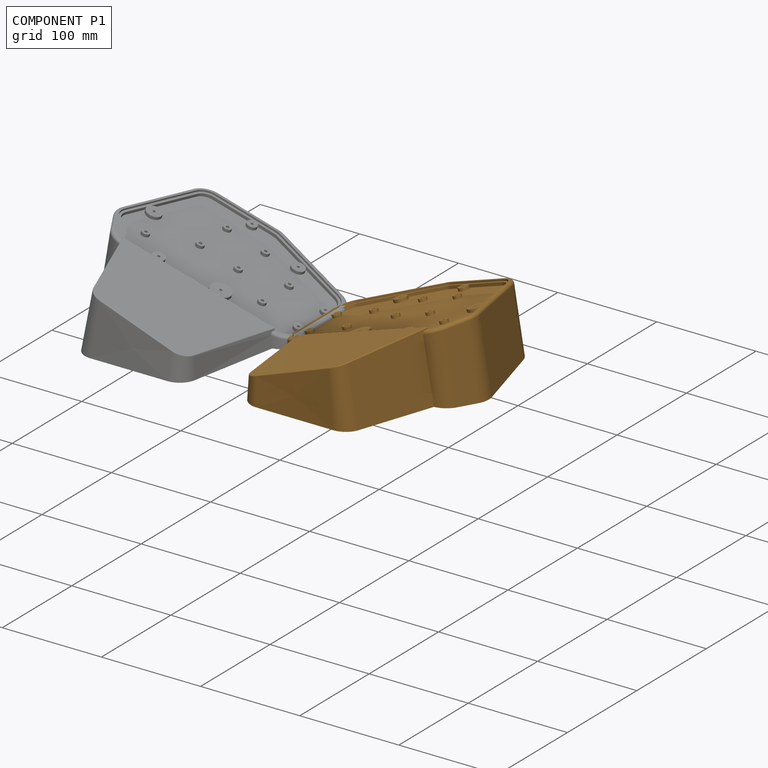
[diagram: component P1 — assembled]
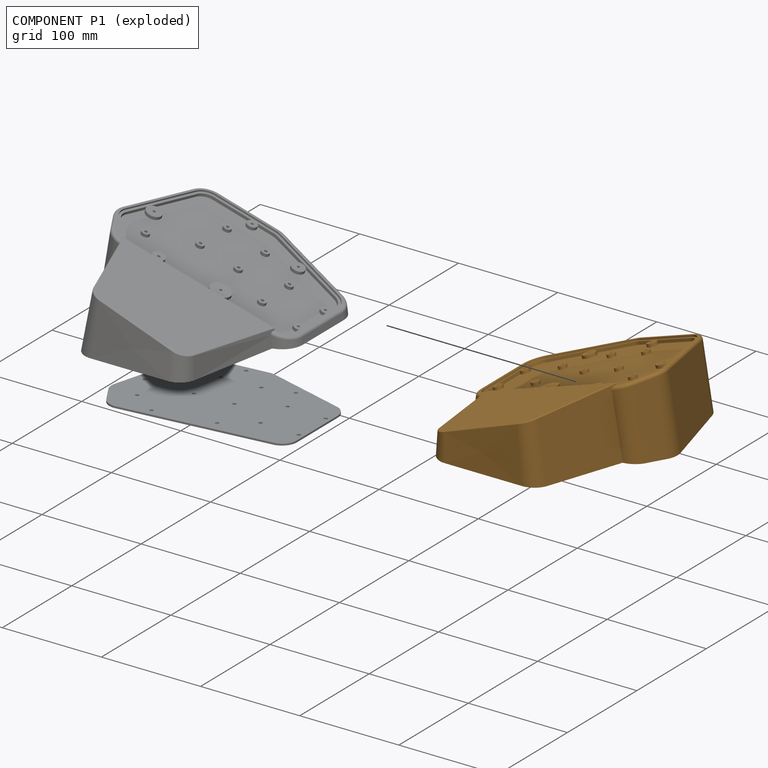
[diagram: component P1 — exploded]
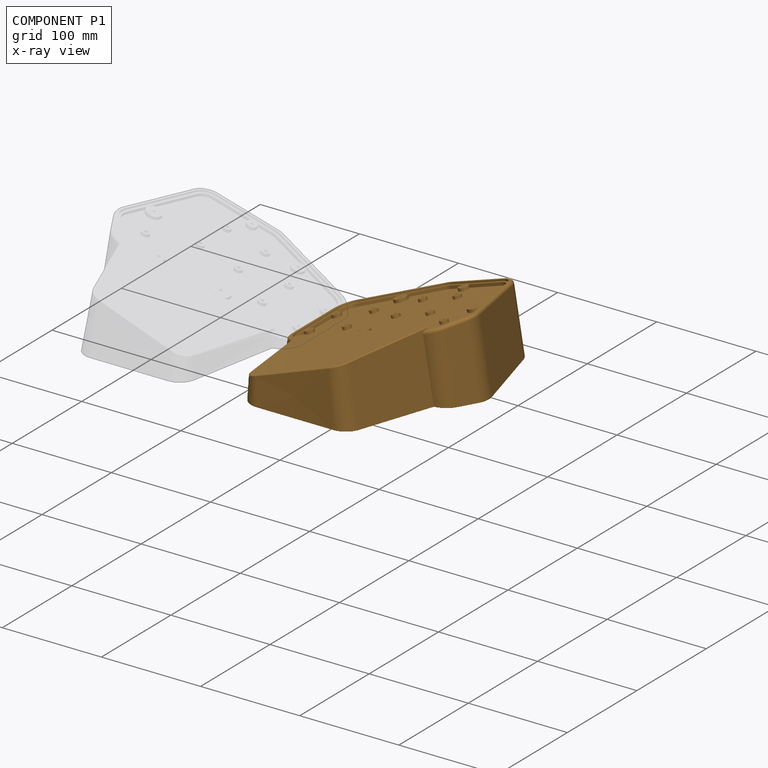
[diagram: component P1 — x-ray view]
COMPONENT P1 — geometry summary ("Left Hand Side"; no construction recipe available for this part):
  bounding box: 224.0 x 199.3 x 74.7 mm
  tessellated surface: 30,052 triangles
  volume: 1322474 mm^3 (40% of its bounding box)
Held by: resting contact with P0 (derived edge); resting contact with P2 (derived edge).
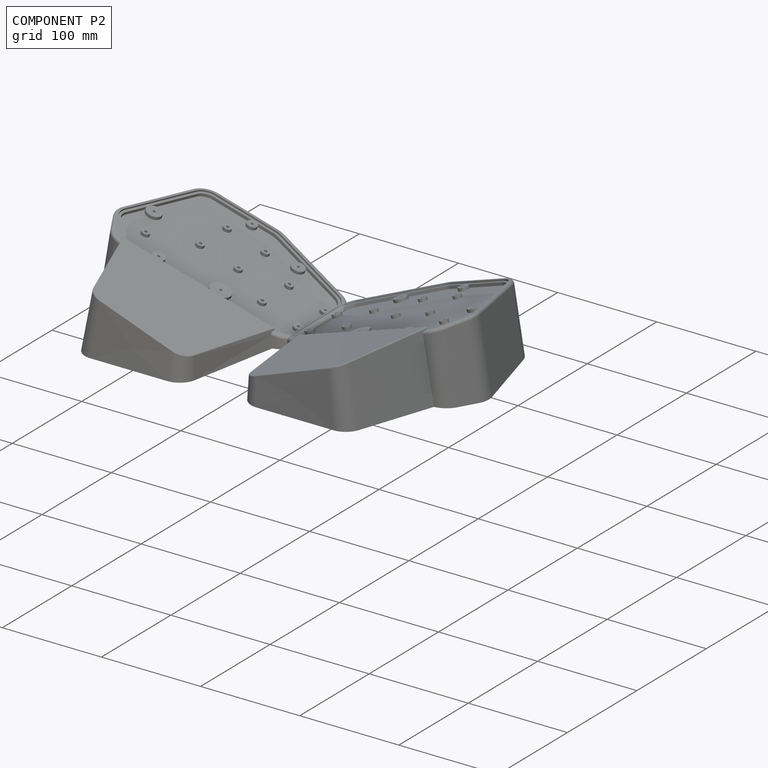
[diagram: component P2 — assembled]
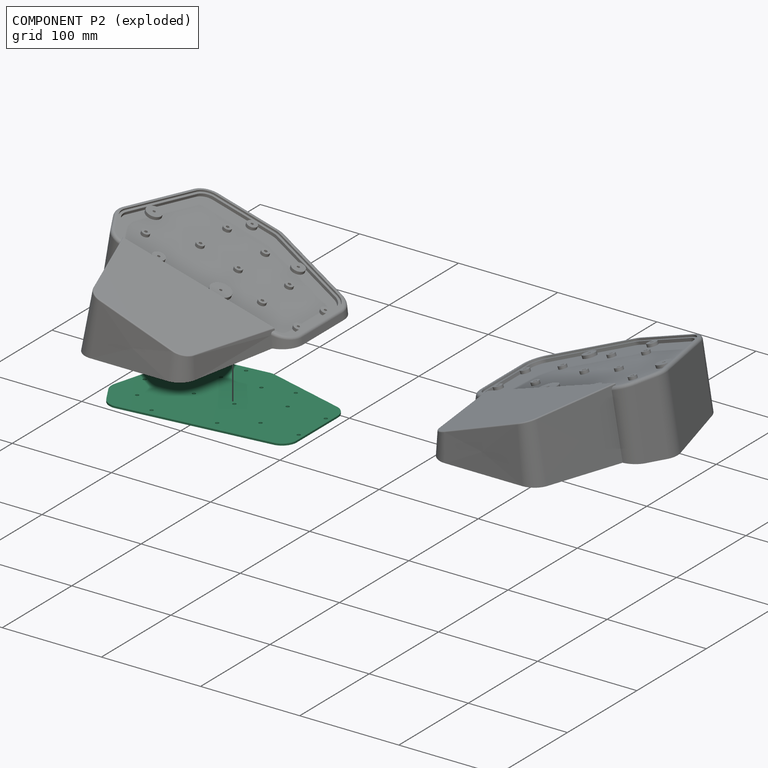
[diagram: component P2 — exploded]
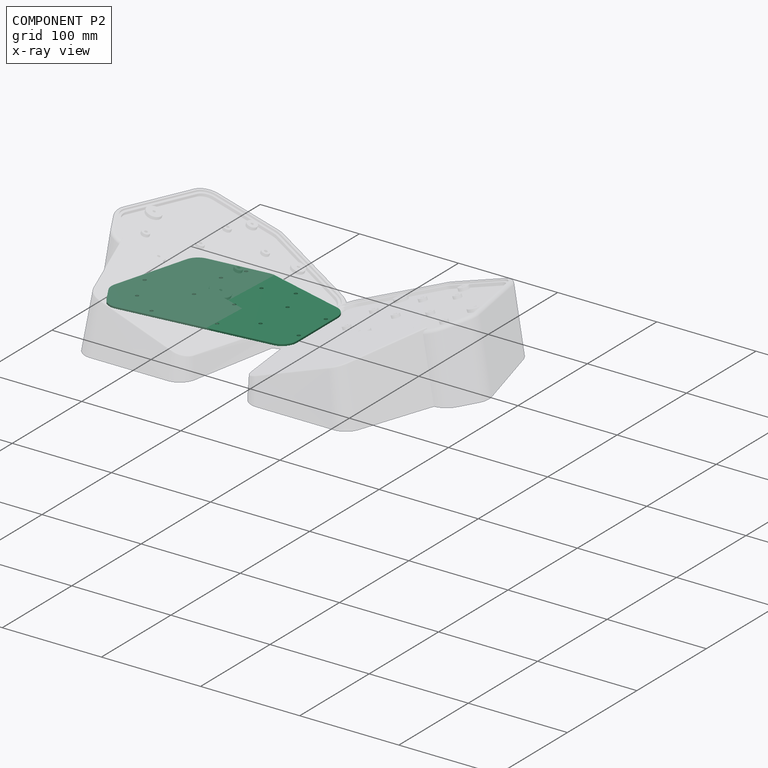
[diagram: component P2 — x-ray view]
COMPONENT P2 — recipe-attached ("Right Hand Side PCB", modeled in this document).
Held by: resting contact with P0 (derived edge); resting contact with P1 (derived edge).
Construction recipe (the document's own serialized feature program — sketch geometry with constraints, then the solid features built on it; lengths are millimeters unless a unit is written):

FEATURE [PartDesign::CoordinateSystem] LCS_0
  AttacherType = Attacher::AttachEngine3D
  MapMode = 2
  Support = -> [X_Axis003]
FEATURE [Sketcher::SketchObject] Sketch008
  FullyConstrained = true
  MapMode = 5
  Support = -> [XY_Plane003]
  expr: Constraints[29] = Sketch.Constraints.vertex_radius
  expr: Constraints[15] = Sketch.Constraints[15]
  expr: Constraints[12] = Sketch.Constraints[12]
  expr: Constraints[11] = Sketch.Constraints[11]
  expr: Constraints[14] = Sketch.Constraints[14]
  expr: Constraints[9] = Sketch.Constraints[9]
  expr: Constraints[16] = Sketch.Constraints[16]
  expr: Constraints[8] = Sketch.Constraints[8]
  expr: Constraints[13] = Sketch.Constraints[13]
  expr: Constraints[7] = Sketch.Constraints[7]
  expr: Constraints[6] = Sketch.Constraints[6]
  expr: Constraints[10] = Sketch.Constraints[10]
  expr: Constraints[5] = Sketch.Constraints[5]
  sketch-geometry (18):
    g0: LineSegment StartX=-152 StartY=-1 StartZ=0 EndX=-172.287 EndY=-75.1 EndZ=0
    g1: LineSegment StartX=-172.287 StartY=-75.1 StartZ=0 EndX=-162.537 EndY=-91.9875 EndZ=0
    g2: LineSegment StartX=-162.537 StartY=-91.9875 StartZ=0 EndX=-15 EndY=-75.5 EndZ=0
    g3: LineSegment StartX=-15 StartY=-75.5 StartZ=0 EndX=-15 EndY=-17 EndZ=0
    g4: LineSegment StartX=-15 StartY=-17 StartZ=0 EndX=-93 EndY=5 EndZ=0
    g5: LineSegment StartX=-93 StartY=5 StartZ=0 EndX=-152 EndY=-1 EndZ=0
    g6: LineSegment StartX=-166.468 StartY=2.96101 StartZ=0 EndX=-186.755 EndY=-71.139 EndZ=0
    g7: LineSegment StartX=-153.518 StartY=13.923 StartZ=0 EndX=-94.5176 EndY=19.923 EndZ=0
    g8: LineSegment StartX=-88.9281 StartY=19.4367 StartZ=0 EndX=-10.9281 EndY=-2.56325 EndZ=0
    g9: LineSegment StartX=-8.9e-15 StartY=-17 StartZ=0 EndX=-8.9e-15 EndY=-75.5 EndZ=0
    g10: LineSegment StartX=-13.3341 StartY=-90.4072 StartZ=0 EndX=-160.872 EndY=-106.895 EndZ=0
    g11: LineSegment StartX=-185.278 StartY=-82.6 StartZ=0 EndX=-175.528 EndY=-99.4875 EndZ=0
    g12: ArcOfCircle CenterX=-152 CenterY=-1 CenterZ=0 NormalX=0 NormalY=0 NormalZ=1 AngleXU=0 Radius=15 StartAngle=1.67214 EndAngle=2.87436
    g13: ArcOfCircle CenterX=-93 CenterY=5 CenterZ=0 NormalX=0 NormalY=0 NormalZ=1 AngleXU=0 Radius=15 StartAngle=1.29589 EndAngle=1.67214
    g14: ArcOfCircle CenterX=-15 CenterY=-17 CenterZ=0 NormalX=0 NormalY=0 NormalZ=1 AngleXU=0 Radius=15 StartAngle=0 EndAngle=1.29589
    g15: ArcOfCircle CenterX=-15 CenterY=-75.5 CenterZ=0 NormalX=0 NormalY=0 NormalZ=1 AngleXU=0 Radius=15 StartAngle=4.82368 EndAngle=6.28319
    g16: ArcOfCircle CenterX=-162.537 CenterY=-91.9875 CenterZ=0 NormalX=0 NormalY=0 NormalZ=1 AngleXU=0 Radius=15 StartAngle=3.66519 EndAngle=4.82368
    g17: ArcOfCircle CenterX=-172.287 CenterY=-75.1 CenterZ=0 NormalX=0 NormalY=0 NormalZ=1 AngleXU=0 Radius=15 StartAngle=2.87436 EndAngle=3.66519
  constraints (43):
    c: Coincident(g0,g1)
    c: Coincident(g1,g2)
    c: Coincident(g2,g3)
    c: Coincident(g3,g4)
    c: Coincident(g4,g5)
    c: DistanceX(g0) = -172.287
    c: DistanceY(g0) = -75.1
    c: DistanceX(g1) = -162.537
    c: DistanceY(g1) = -91.9875
    c: DistanceX(g2) = -15
    c: DistanceY(g2) = -75.5
    c: DistanceX(g3) = -15
    c: DistanceY(g3) = -17
    c: DistanceX(g4) = -93
    c: DistanceY(g4) = 5
    c: DistanceX(g0) = -152
    c: DistanceY(g0) = -1
    c: Vertical(g9)
    c: Coincident(g12,g0)
    c: Coincident(g13,g4)
    c: Coincident(g14,g3)
    c: Coincident(g15,g2)
    c: Coincident(g16,g1)
    c: Coincident(g17,g0)
    c: Equal(g12,g13)
    c: Equal(g13,g14)
    c: Equal(g14,g15)
    c: Equal(g15,g16)
    c: Equal(g16,g17)
    c: Radius(g12) = 15
    c: Tangent(g12,g7) = 1.5708
    c: Tangent(g12,g6) = -1.5708
    c: Tangent(g6,g17) = -1.5708
    c: Tangent(g17,g11) = -1.5708
    c: Coincident(g15,g9)
    c: Tangent(g15,g10) = 1.5708
    c: Tangent(g16,g10) = 1.5708
    c: Tangent(g13,g8) = 1.5708
    c: Tangent(g13,g7) = 1.5708
    c: Tangent(g8,g14) = 1.5708
    c: Tangent(g9,g14) = 1.5708
    c: Tangent(g16,g11) = -1.5708
    c: Coincident(g12,g5)
FEATURE [PartDesign::Plane] DatumPlane003  label="PCB Height"
  AttachmentOffset = pos=(0,0,1.8) rot=(0,0,1;0rad)
  Length = 245.715
  MapMode = 5
  Placement = pos=(0,0,1.8) rot=(0,0,1;0rad)
  ResizeMode = 0
  Support = -> [XY_Plane003]
  Width = 165.358
  expr: .AttachmentOffset.Base.z = <<Parameters>>.pcb_thickness
FEATURE [PartDesign::Pad] Pad001  label="PCB"
  Direction = (1,1,1)
  Length = 10
  Length2 = 100
  Profile = -> Sketch008
  Type = 3
  UpToFace = -> DatumPlane003 [Plane]
FEATURE [Sketcher::SketchObject] Sketch009
  FullyConstrained = true
  MapMode = 5
  Support = -> [XY_Plane003]
  expr: Constraints[40] = Sketch001.Constraints[40]
  expr: Constraints[39] = Sketch001.Constraints[39]
  expr: Constraints[37] = Sketch001.Constraints[37]
  expr: Constraints[35] = Sketch001.Constraints[35]
  expr: Constraints[33] = Sketch001.Constraints[33]
  expr: Constraints[20] = Sketch001.Constraints[20]
  expr: Constraints[24] = Sketch001.Constraints[24]
  expr: Constraints[27] = Sketch001.Constraints[27]
  expr: Constraints[22] = Sketch001.Constraints[22]
  expr: Constraints[41] = Sketch001.Constraints[41]
  expr: Constraints[28] = Sketch001.Constraints[28]
  expr: Constraints[21] = Sketch001.Constraints[21]
  expr: Constraints[30] = Sketch001.Constraints[30]
  expr: Constraints[31] = Sketch001.Constraints[31]
  expr: Constraints[19] = Sketch001.Constraints[19]
  expr: Constraints[23] = Sketch001.Constraints[23]
  expr: Constraints[26] = Sketch001.Constraints[26]
  expr: Constraints[3] = Sketch001.Constraints[3]
  expr: Constraints[32] = Sketch001.Constraints[32]
  expr: Constraints[4] = Sketch001.Constraints[4]
  expr: Constraints[29] = Sketch001.Constraints[29]
  expr: Constraints[38] = Sketch001.Constraints[38]
  expr: Constraints[5] = Sketch001.Constraints[5]
  expr: Constraints[2] = Sketch001.Constraints[2]
  expr: Constraints[1] = Sketch001.Constraints[1]
  expr: .Constraints.hole_diameter = Sketch001.Constraints[25]
  expr: Constraints[0] = Sketch001.Constraints[0]
  expr: Constraints[34] = Sketch001.Constraints[34]
  expr: Constraints[36] = Sketch001.Constraints[36]
  sketch-geometry (14):
    g0: Circle CenterX=-5 CenterY=-26.75 CenterZ=0 NormalX=0 NormalY=0 NormalZ=1 AngleXU=0 Radius=1.75
    g1: Circle CenterX=-5 CenterY=-65.75 CenterZ=0 NormalX=0 NormalY=0 NormalZ=1 AngleXU=0 Radius=1.75
    g2: Circle CenterX=-44.25 CenterY=-25.75 CenterZ=0 NormalX=0 NormalY=0 NormalZ=1 AngleXU=0 Radius=1.75
    g3: Circle CenterX=-44.25 CenterY=-64.75 CenterZ=0 NormalX=0 NormalY=0 NormalZ=1 AngleXU=0 Radius=1.75
    g4: Circle CenterX=-54 CenterY=0 CenterZ=0 NormalX=0 NormalY=0 NormalZ=1 AngleXU=0 Radius=1.75
    g5: Circle CenterX=-83.25 CenterY=-7.75 CenterZ=0 NormalX=0 NormalY=0 NormalZ=1 AngleXU=0 Radius=1.75
    g6: Circle CenterX=-158.969 CenterY=-78.6687 CenterZ=0 NormalX=0 NormalY=0 NormalZ=1 AngleXU=0 Radius=1.75
    g7: Circle CenterX=-73.5 CenterY=-85.5 CenterZ=0 NormalX=0 NormalY=0 NormalZ=1 AngleXU=0 Radius=1.75
    g8: Circle CenterX=-132.25 CenterY=-96 CenterZ=0 NormalX=0 NormalY=0 NormalZ=1 AngleXU=0 Radius=1.75
    g9: Circle CenterX=-171.5 CenterY=-50 CenterZ=0 NormalX=0 NormalY=0 NormalZ=1 AngleXU=0 Radius=1.75
    g10: Circle CenterX=-112.5 CenterY=12 CenterZ=0 NormalX=0 NormalY=0 NormalZ=1 AngleXU=0 Radius=1.75
    g11: Circle CenterX=-122.25 CenterY=-49.25 CenterZ=0 NormalX=0 NormalY=0 NormalZ=1 AngleXU=0 Radius=1.75
    g12: Circle CenterX=-122.25 CenterY=-10.25 CenterZ=0 NormalX=0 NormalY=0 NormalZ=1 AngleXU=0 Radius=1.75
    g13: Circle CenterX=-83.25 CenterY=-46.75 CenterZ=0 NormalX=0 NormalY=0 NormalZ=1 AngleXU=0 Radius=1.75
  constraints (42):
    c: DistanceX(g0) = -5
    c: DistanceY(g0) = -26.75
    c: DistanceX(g1) = -5
    c: DistanceY(g1) = -65.75
    c: DistanceX(g2) = -44.25
    c: DistanceY(g2) = -25.75
    c: Equal(g0,g1)
    c: Equal(g1,g2)
    c: Equal(g2,g3)
    c: Equal(g3,g4)
    c: Equal(g4,g5)
    c: Equal(g5,g6)
    c: Equal(g6,g7)
    c: Equal(g7,g8)
    c: Equal(g8,g9)
    c: Equal(g9,g10)
    c: Equal(g10,g11)
    c: Equal(g11,g12)
    c: Equal(g12,g13)
    c: DistanceX(g3) = -44.25
    c: DistanceY(g3) = -64.75
    c: DistanceX(g5) = -83.25
    c: DistanceY(g5) = -7.75
    c: DistanceX(g13) = -83.25
    c: DistanceY(g13) = -46.75
    c: Diameter(g1) = 3.5  'hole_diameter'
    c: DistanceX(g12) = -122.25
    c: DistanceY(g12) = -10.25
    c: DistanceX(g11) = -122.25
    c: DistanceY(g11) = -49.25
    c: DistanceX(g4) = -54
    c: DistanceY(g4) = 0
    c: DistanceX(g7) = -73.5
    c: DistanceY(g7) = -85.5
    c: DistanceX(g10) = -112.5
    c: DistanceY(g10) = 12
    c: DistanceX(g8) = -132.25
    c: DistanceY(g8) = -96
    c: DistanceX(g9) = -171.5
    c: DistanceY(g9) = -50
    c: DistanceX(g6) = -158.969
    c: DistanceY(g6) = -78.6687
FEATURE [PartDesign::Pocket] Pocket003  label="PCB Mounting Holes001"
  BaseFeature = -> Pad001
  Length = 0
  Length2 = 100
  Profile = -> Sketch009
  Type = 3
  UpToFace = -> DatumPlane003
FEATURE [PartDesign::Body] Right_Hand_Side_PCB  label="Right Hand Side PCB"
  Group = -> [LCS_0,DatumPlane003,Sketch008,Pad001,Sketch009,Pocket003]
  Origin = -> Origin003
  Tip = -> Pocket003
PROVENANCE & LICENSES
Assembly and component geometry: a FreeCAD (.FCStd) document from a public repository crawl; components, placements and joints were extracted with FreeCAD and each solid tessellated.
Construction recipes: the document's own serialized feature recipes (and, for linked parts, the recipes of companion documents from the same project).
License: mit.
Joints: native FreeCAD joints and A2plus constraints are mapped to standard mate types; edges marked 'derived from contact' connect touching components and are measured from the geometry, not modeled.
Verification: 2 of this assembly's 3 components carry a construction recipe (2 from this document itself); the rest are geometry-only. Every component's tessellation passed the extraction mesh gates (mesh-volume checksum against the B-rep where available, bounding-box inflation <= 2%).
Renders: orthographic iso camera (az 35 / el 25); the floor grid conveys scale (grid pitch printed in each image; no ruler). In the exploded view each component is displaced by its stored offset vector: the offsets alone carry the explosion direction (mate normal/axis signs are not orientation cues and do not encode it), and separation distances are assigned per mate-chain, not proportionally to assembly-order depth.
